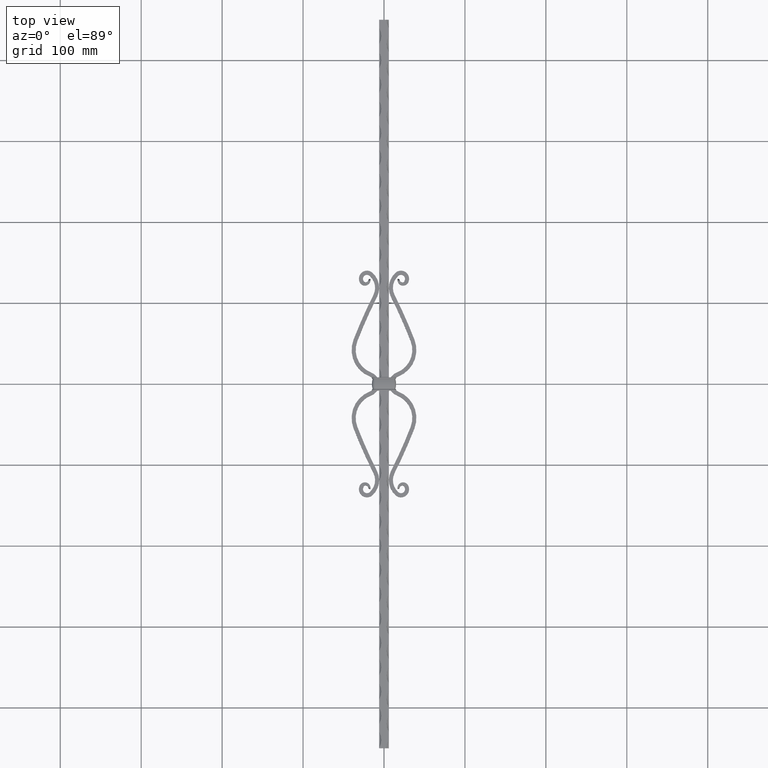
[diagram: clean part render]
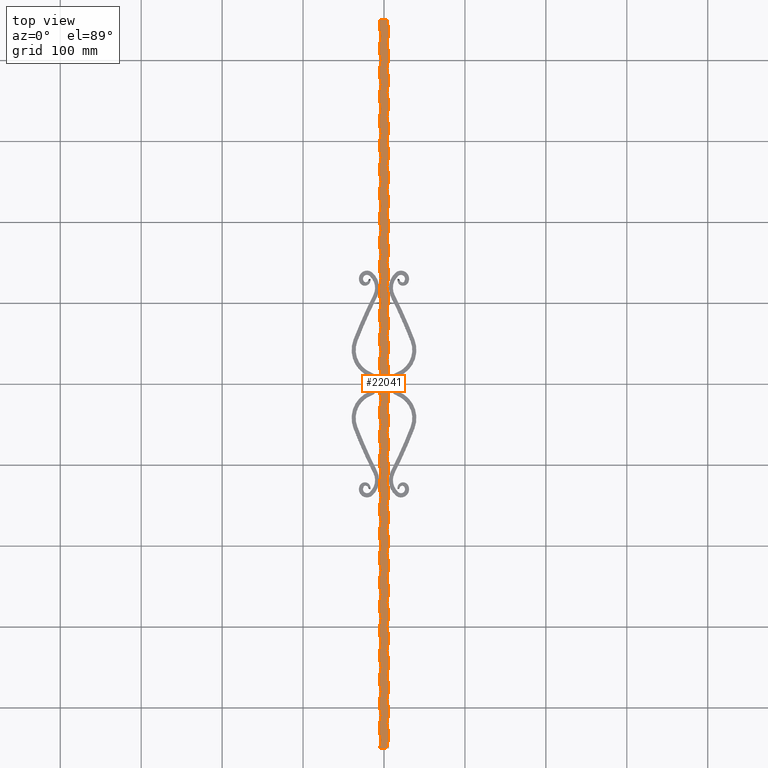
[diagram: same view with one face highlighted and labeled with its STEP entity id]
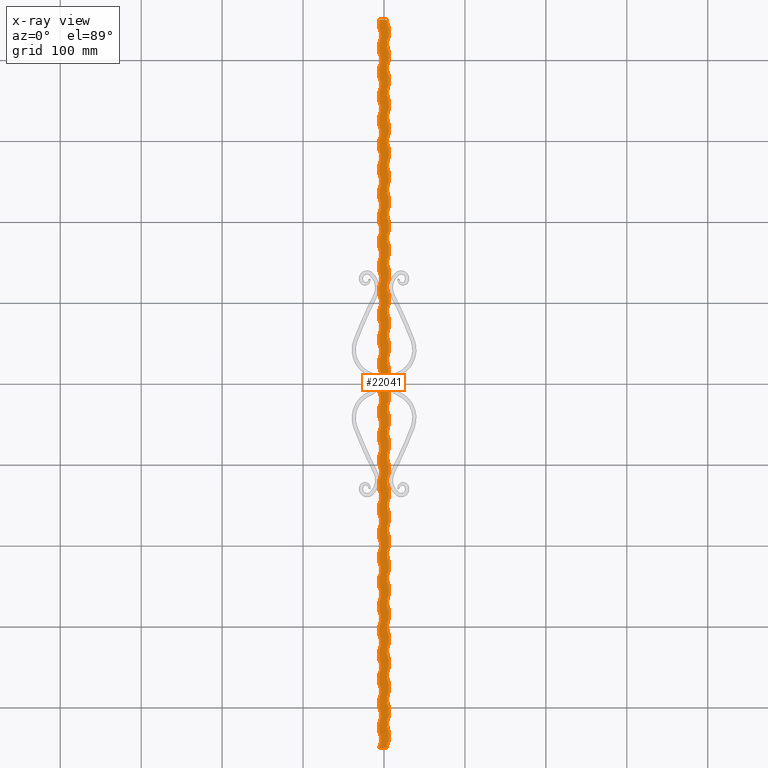
[diagram: x-ray of the same camera — body ghosted, the highlighted face saturated]
A machine part, top view. The second image highlights one B-rep face of the part: STEP entity #22041.
The next image is the same camera in x-ray: the body ghosted, the highlighted face saturated — about 0% of this face is hidden behind the body in this view.
In plain terms, the highlighted planar face has unit normal (0, 0, -1).
Its self-contained STEP definition (entity closure, byte-faithful):
#17 = DIRECTION ( 'NONE',  ( -0.000000000000000000, -0.000000000000000000, 1.000000000000000000 ) ) ;
#44 = DIRECTION ( 'NONE',  ( -0.000000000000000000, -1.000000000000000000, -0.000000000000000000 ) ) ;
#70 = CARTESIAN_POINT ( 'NONE',  ( 6.000000000000000000, -10.00000000000000888, 5.999999999999999112 ) ) ;
#94 = CIRCLE ( 'NONE', #9478, 21.25000000000002487 ) ;
#106 = DIRECTION ( 'NONE',  ( -0.000000000000000000, -0.000000000000000000, 1.000000000000000000 ) ) ;
#114 = LINE ( 'NONE', #17225, #2529 ) ;
#118 = LINE ( 'NONE', #1131, #20793 ) ;
#127 = VERTEX_POINT ( 'NONE', #9337 ) ;
#140 = CIRCLE ( 'NONE', #18462, 21.25000000000002487 ) ;
#198 = VECTOR ( 'NONE', #14918, 1000.000000000000000 ) ;
#204 = CARTESIAN_POINT ( 'NONE',  ( -6.000000000000000000, -279.9999999999999432, 5.999999999999999112 ) ) ;
#218 = VERTEX_POINT ( 'NONE', #204 ) ;
#235 = EDGE_CURVE ( 'NONE', #2579, #1004, #18643, .T. ) ;
#245 = EDGE_CURVE ( 'NONE', #11837, #17904, #680, .T. ) ;
#249 = DIRECTION ( 'NONE',  ( 0.000000000000000000, 0.000000000000000000, -1.000000000000000000 ) ) ;
#256 = AXIS2_PLACEMENT_3D ( 'NONE', #9982, #18737, #17128 ) ;
#260 = CARTESIAN_POINT ( 'NONE',  ( 24.75000000000002132, 29.99999999999997158, 5.999999999999999112 ) ) ;
#278 = VERTEX_POINT ( 'NONE', #21378 ) ;
#313 = CARTESIAN_POINT ( 'NONE',  ( -6.000000000000000000, 350.0000000000000000, 5.999999999999999112 ) ) ;
#322 = ORIENTED_EDGE ( 'NONE', *, *, #19440, .F. ) ;
#327 = DIRECTION ( 'NONE',  ( -0.000000000000000000, -1.000000000000000000, -0.000000000000000000 ) ) ;
#358 = DIRECTION ( 'NONE',  ( -1.000000000000000000, 0.000000000000000000, 0.000000000000000000 ) ) ;
#367 = AXIS2_PLACEMENT_3D ( 'NONE', #10235, #19201, #11987 ) ;
#416 = CIRCLE ( 'NONE', #2939, 21.25000000000002487 ) ;
#443 = VECTOR ( 'NONE', #17637, 1000.000000000000000 ) ;
#547 = LINE ( 'NONE', #20705, #11736 ) ;
#574 = AXIS2_PLACEMENT_3D ( 'NONE', #4536, #21733, #1071 ) ;
#586 = EDGE_CURVE ( 'NONE', #18711, #16238, #5260, .T. ) ;
#609 = EDGE_CURVE ( 'NONE', #20994, #12991, #22138, .T. ) ;
#639 = FACE_OUTER_BOUND ( 'NONE', #20996, .T. ) ;
#660 = EDGE_CURVE ( 'NONE', #13846, #18539, #20795, .T. ) ;
#680 = CIRCLE ( 'NONE', #4143, 21.25000000000002487 ) ;
#728 = CARTESIAN_POINT ( 'NONE',  ( 24.75000000000002132, 270.0000000000000000, 5.999999999999999112 ) ) ;
#736 = CIRCLE ( 'NONE', #20136, 21.25000000000002487 ) ;
#749 = CARTESIAN_POINT ( 'NONE',  ( -6.000000000000000000, 450.0000000000000000, 5.999999999999999112 ) ) ;
#760 = ORIENTED_EDGE ( 'NONE', *, *, #10919, .F. ) ;
#817 = CARTESIAN_POINT ( 'NONE',  ( -6.000000000000000000, 450.0000000000000000, 5.999999999999999112 ) ) ;
#820 = CARTESIAN_POINT ( 'NONE',  ( -5.999999999999998224, -90.00000000000002842, 5.999999999999999112 ) ) ;
#847 = VERTEX_POINT ( 'NONE', #1008 ) ;
#853 = DIRECTION ( 'NONE',  ( -1.000000000000000000, 0.000000000000000000, 0.000000000000000000 ) ) ;
#855 = CARTESIAN_POINT ( 'NONE',  ( -5.999999999999998224, -330.0000000000000000, 5.999999999999999112 ) ) ;
#866 = CIRCLE ( 'NONE', #1322, 21.25000000000002487 ) ;
#892 = VERTEX_POINT ( 'NONE', #18650 ) ;
#926 = CIRCLE ( 'NONE', #13983, 21.25000000000002487 ) ;
#948 = ORIENTED_EDGE ( 'NONE', *, *, #15532, .F. ) ;
#954 = AXIS2_PLACEMENT_3D ( 'NONE', #16414, #16191, #9567 ) ;
#1004 = VERTEX_POINT ( 'NONE', #10426 ) ;
#1008 = CARTESIAN_POINT ( 'NONE',  ( 6.000000000000000000, -279.9999999999999432, 5.999999999999999112 ) ) ;
#1071 = DIRECTION ( 'NONE',  ( -1.000000000000000000, 0.000000000000000000, 0.000000000000000000 ) ) ;
#1072 = VECTOR ( 'NONE', #10394, 1000.000000000000000 ) ;
#1086 = CARTESIAN_POINT ( 'NONE',  ( 6.000000000000000000, 339.9999999999999432, 5.999999999999999112 ) ) ;
#1112 = CARTESIAN_POINT ( 'NONE',  ( -5.999999999999998224, -29.99999999999997158, 5.999999999999999112 ) ) ;
#1115 = EDGE_CURVE ( 'NONE', #19668, #1796, #19767, .T. ) ;
#1128 = VERTEX_POINT ( 'NONE', #2482 ) ;
#1131 = CARTESIAN_POINT ( 'NONE',  ( 6.000000000000000000, 450.0000000000000000, 5.999999999999999112 ) ) ;
#1138 = VECTOR ( 'NONE', #7427, 1000.000000000000000 ) ;
#1165 = ORIENTED_EDGE ( 'NONE', *, *, #10193, .F. ) ;
#1173 = CARTESIAN_POINT ( 'NONE',  ( -5.999999999999998224, -1.734723475976807094E-15, 5.999999999999999112 ) ) ;
#1241 = VERTEX_POINT ( 'NONE', #18242 ) ;
#1296 = VECTOR ( 'NONE', #19937, 1000.000000000000000 ) ;
#1304 = ORIENTED_EDGE ( 'NONE', *, *, #18014, .T. ) ;
#1307 = CARTESIAN_POINT ( 'NONE',  ( -6.000000000000000000, 140.0000000000000000, 5.999999999999999112 ) ) ;
#1322 = AXIS2_PLACEMENT_3D ( 'NONE', #17123, #9893, #8442 ) ;
#1365 = ORIENTED_EDGE ( 'NONE', *, *, #12570, .T. ) ;
#1381 = ORIENTED_EDGE ( 'NONE', *, *, #18734, .F. ) ;
#1439 = LINE ( 'NONE', #5464, #6038 ) ;
#1440 = ORIENTED_EDGE ( 'NONE', *, *, #16955, .T. ) ;
#1514 = DIRECTION ( 'NONE',  ( -0.000000000000000000, -1.000000000000000000, -0.000000000000000000 ) ) ;
#1555 = CARTESIAN_POINT ( 'NONE',  ( -5.999999999999998224, 270.0000000000000000, 5.999999999999999112 ) ) ;
#1572 = DIRECTION ( 'NONE',  ( -1.000000000000000000, 0.000000000000000000, 0.000000000000000000 ) ) ;
#1594 = CARTESIAN_POINT ( 'NONE',  ( -5.999999999999998224, 300.0000000000000000, 5.999999999999999112 ) ) ;
#1597 = EDGE_CURVE ( 'NONE', #8873, #8090, #10242, .T. ) ;
#1645 = CARTESIAN_POINT ( 'NONE',  ( 6.000000000000000000, -310.0000000000000000, 5.999999999999999112 ) ) ;
#1650 = VECTOR ( 'NONE', #20461, 1000.000000000000000 ) ;
#1666 = EDGE_CURVE ( 'NONE', #8873, #3470, #21914, .T. ) ;
#1684 = CARTESIAN_POINT ( 'NONE',  ( 6.000000000000000000, -410.0000000000000000, 5.999999999999999112 ) ) ;
#1715 = DIRECTION ( 'NONE',  ( -0.000000000000000000, -0.000000000000000000, 1.000000000000000000 ) ) ;
#1731 = CARTESIAN_POINT ( 'NONE',  ( -5.999999999999998224, -300.0000000000000000, 5.999999999999999112 ) ) ;
#1734 = ORIENTED_EDGE ( 'NONE', *, *, #19594, .T. ) ;
#1763 = DIRECTION ( 'NONE',  ( -1.000000000000000000, 0.000000000000000000, 0.000000000000000000 ) ) ;
#1781 = ORIENTED_EDGE ( 'NONE', *, *, #13902, .T. ) ;
#1796 = VERTEX_POINT ( 'NONE', #18052 ) ;
#1840 = DIRECTION ( 'NONE',  ( 0.000000000000000000, 0.000000000000000000, -1.000000000000000000 ) ) ;
#1863 = EDGE_CURVE ( 'NONE', #21041, #12360, #3906, .T. ) ;
#1877 = VERTEX_POINT ( 'NONE', #16374 ) ;
#1901 = EDGE_CURVE ( 'NONE', #218, #16464, #21624, .T. ) ;
#1928 = CARTESIAN_POINT ( 'NONE',  ( -24.75000000000002132, -259.9999999999999432, 5.999999999999999112 ) ) ;
#1944 = VERTEX_POINT ( 'NONE', #6471 ) ;
#1969 = CARTESIAN_POINT ( 'NONE',  ( -5.999999999999998224, 210.0000000000000000, 5.999999999999999112 ) ) ;
#1993 = DIRECTION ( 'NONE',  ( -1.000000000000000000, 0.000000000000000000, 0.000000000000000000 ) ) ;
#1995 = DIRECTION ( 'NONE',  ( -0.000000000000000000, -1.000000000000000000, -0.000000000000000000 ) ) ;
#2045 = CARTESIAN_POINT ( 'NONE',  ( 6.000000000000000000, 450.0000000000000000, 5.999999999999999112 ) ) ;
#2060 = VERTEX_POINT ( 'NONE', #17315 ) ;
#2066 = DIRECTION ( 'NONE',  ( -0.000000000000000000, -0.000000000000000000, 1.000000000000000000 ) ) ;
#2080 = ORIENTED_EDGE ( 'NONE', *, *, #15600, .T. ) ;
#2129 = EDGE_CURVE ( 'NONE', #10327, #7529, #20563, .T. ) ;
#2171 = CARTESIAN_POINT ( 'NONE',  ( 6.000000000000000000, -350.0000000000000568, 5.999999999999999112 ) ) ;
#2230 = VERTEX_POINT ( 'NONE', #15875 ) ;
#2235 = ORIENTED_EDGE ( 'NONE', *, *, #13326, .F. ) ;
#2255 = DIRECTION ( 'NONE',  ( -1.000000000000000000, 0.000000000000000000, 0.000000000000000000 ) ) ;
#2312 = EDGE_CURVE ( 'NONE', #12613, #21057, #4762, .T. ) ;
#2318 = VECTOR ( 'NONE', #4012, 1000.000000000000000 ) ;
#2375 = VECTOR ( 'NONE', #327, 1000.000000000000000 ) ;
#2394 = CARTESIAN_POINT ( 'NONE',  ( -6.000000000000000000, 290.0000000000000568, 5.999999999999999112 ) ) ;
#2399 = CARTESIAN_POINT ( 'NONE',  ( 6.000000000000000000, -19.99999999999996092, 5.999999999999999112 ) ) ;
#2456 = CARTESIAN_POINT ( 'NONE',  ( -6.000000000000000000, -39.99999999999997868, 5.999999999999999112 ) ) ;
#2482 = CARTESIAN_POINT ( 'NONE',  ( -6.000000000000000000, 230.0000000000000000, 5.999999999999999112 ) ) ;
#2504 = EDGE_CURVE ( 'NONE', #4307, #20528, #14019, .T. ) ;
#2510 = ORIENTED_EDGE ( 'NONE', *, *, #586, .F. ) ;
#2529 = VECTOR ( 'NONE', #8557, 1000.000000000000000 ) ;
#2531 = EDGE_CURVE ( 'NONE', #5405, #7018, #4735, .T. ) ;
#2543 = DIRECTION ( 'NONE',  ( -1.000000000000000000, 0.000000000000000000, 0.000000000000000000 ) ) ;
#2579 = VERTEX_POINT ( 'NONE', #13181 ) ;
#2619 = LINE ( 'NONE', #6362, #198 ) ;
#2631 = CARTESIAN_POINT ( 'NONE',  ( 6.000000000000000000, -290.0000000000000000, 5.999999999999999112 ) ) ;
#2639 = LINE ( 'NONE', #3663, #2375 ) ;
#2650 = VERTEX_POINT ( 'NONE', #1086 ) ;
#2666 = EDGE_CURVE ( 'NONE', #19785, #16663, #926, .T. ) ;
#2699 = CIRCLE ( 'NONE', #11235, 21.25000000000002487 ) ;
#2720 = CARTESIAN_POINT ( 'NONE',  ( 24.75000000000002132, 60.00000000000000000, 5.999999999999999112 ) ) ;
#2729 = CARTESIAN_POINT ( 'NONE',  ( -6.000000000000000000, 450.0000000000000000, 5.999999999999999112 ) ) ;
#2748 = CARTESIAN_POINT ( 'NONE',  ( -24.75000000000002132, 430.0000000000000000, 5.999999999999999112 ) ) ;
#2758 = CARTESIAN_POINT ( 'NONE',  ( -6.000000000000000000, -450.0000000000000000, 5.999999999999999112 ) ) ;
#2835 = EDGE_CURVE ( 'NONE', #9685, #13024, #8838, .T. ) ;
#2847 = DIRECTION ( 'NONE',  ( -0.000000000000000000, -1.000000000000000000, -0.000000000000000000 ) ) ;
#2851 = CIRCLE ( 'NONE', #954, 21.25000000000002487 ) ;
#2861 = VERTEX_POINT ( 'NONE', #10594 ) ;
#2866 = ORIENTED_EDGE ( 'NONE', *, *, #2504, .F. ) ;
#2869 = ORIENTED_EDGE ( 'NONE', *, *, #13814, .F. ) ;
#2872 = CARTESIAN_POINT ( 'NONE',  ( -5.999999999999998224, -120.0000000000000568, 5.999999999999999112 ) ) ;
#2903 = DIRECTION ( 'NONE',  ( 0.000000000000000000, 0.000000000000000000, -1.000000000000000000 ) ) ;
#2908 = CARTESIAN_POINT ( 'NONE',  ( 24.75000000000002132, 149.9999999999999716, 5.999999999999999112 ) ) ;
#2909 = ORIENTED_EDGE ( 'NONE', *, *, #16362, .F. ) ;
#2939 = AXIS2_PLACEMENT_3D ( 'NONE', #7517, #12557, #2255 ) ;
#2962 = AXIS2_PLACEMENT_3D ( 'NONE', #13718, #13510, #13588 ) ;
#3001 = DIRECTION ( 'NONE',  ( -1.000000000000000000, 0.000000000000000000, 0.000000000000000000 ) ) ;
#3036 = VECTOR ( 'NONE', #12703, 1000.000000000000000 ) ;
#3043 = CIRCLE ( 'NONE', #7780, 21.25000000000002487 ) ;
#3085 = EDGE_CURVE ( 'NONE', #14300, #14457, #118, .T. ) ;
#3099 = AXIS2_PLACEMENT_3D ( 'NONE', #3256, #12018, #17331 ) ;
#3143 = ORIENTED_EDGE ( 'NONE', *, *, #11529, .T. ) ;
#3163 = CARTESIAN_POINT ( 'NONE',  ( 6.000000000000000000, -370.0000000000000568, 5.999999999999999112 ) ) ;
#3168 = DIRECTION ( 'NONE',  ( 0.000000000000000000, 0.000000000000000000, -1.000000000000000000 ) ) ;
#3181 = CARTESIAN_POINT ( 'NONE',  ( 6.000000000000000000, 100.0000000000000284, 5.999999999999999112 ) ) ;
#3195 = EDGE_CURVE ( 'NONE', #3284, #14752, #17791, .T. ) ;
#3226 = CARTESIAN_POINT ( 'NONE',  ( 24.75000000000002132, 120.0000000000000000, 5.999999999999999112 ) ) ;
#3256 = CARTESIAN_POINT ( 'NONE',  ( 24.75000000000002132, -120.0000000000000568, 5.999999999999999112 ) ) ;
#3274 = VERTEX_POINT ( 'NONE', #7343 ) ;
#3284 = VERTEX_POINT ( 'NONE', #2171 ) ;
#3302 = CARTESIAN_POINT ( 'NONE',  ( 6.000000000000000000, 350.0000000000000000, 5.999999999999999112 ) ) ;
#3343 = CARTESIAN_POINT ( 'NONE',  ( 24.75000000000002132, 329.9999999999999432, 5.999999999999999112 ) ) ;
#3394 = VERTEX_POINT ( 'NONE', #21930 ) ;
#3415 = DIRECTION ( 'NONE',  ( -1.000000000000000000, 0.000000000000000000, 0.000000000000000000 ) ) ;
#3455 = VECTOR ( 'NONE', #17973, 1000.000000000000000 ) ;
#3466 = VERTEX_POINT ( 'NONE', #16936 ) ;
#3470 = VERTEX_POINT ( 'NONE', #18830 ) ;
#3497 = CARTESIAN_POINT ( 'NONE',  ( 6.000000000000000000, 250.0000000000000000, 5.999999999999999112 ) ) ;
#3498 = DIRECTION ( 'NONE',  ( -1.000000000000000000, 0.000000000000000000, 0.000000000000000000 ) ) ;
#3577 = VERTEX_POINT ( 'NONE', #8638 ) ;
#3585 = LINE ( 'NONE', #16142, #19367 ) ;
#3608 = VECTOR ( 'NONE', #19256, 1000.000000000000000 ) ;
#3611 = VERTEX_POINT ( 'NONE', #17229 ) ;
#3635 = VERTEX_POINT ( 'NONE', #22485 ) ;
#3637 = CIRCLE ( 'NONE', #256, 21.25000000000002487 ) ;
#3663 = CARTESIAN_POINT ( 'NONE',  ( -6.000000000000000000, 450.0000000000000000, 5.999999999999999112 ) ) ;
#3679 = CARTESIAN_POINT ( 'NONE',  ( 6.000000000000000000, 450.0000000000000000, 5.999999999999999112 ) ) ;
#3705 = CARTESIAN_POINT ( 'NONE',  ( 6.000000000000000000, -139.9999999999999716, 5.999999999999999112 ) ) ;
#3706 = ORIENTED_EDGE ( 'NONE', *, *, #20694, .T. ) ;
#3795 = VERTEX_POINT ( 'NONE', #17617 ) ;
#3800 = CARTESIAN_POINT ( 'NONE',  ( 24.75000000000002132, -450.0000000000000000, 5.999999999999999112 ) ) ;
#3817 = ORIENTED_EDGE ( 'NONE', *, *, #4816, .T. ) ;
#3851 = CARTESIAN_POINT ( 'NONE',  ( 6.000000000000000000, 130.0000000000000000, 5.999999999999999112 ) ) ;
#3852 = ORIENTED_EDGE ( 'NONE', *, *, #15389, .F. ) ;
#3859 = CARTESIAN_POINT ( 'NONE',  ( 6.000000000000000000, -39.99999999999997868, 5.999999999999999112 ) ) ;
#3898 = LINE ( 'NONE', #19513, #22436 ) ;
#3906 = CIRCLE ( 'NONE', #8278, 21.25000000000002487 ) ;
#3939 = VECTOR ( 'NONE', #17426, 1000.000000000000000 ) ;
#3951 = DIRECTION ( 'NONE',  ( 0.000000000000000000, 0.000000000000000000, -1.000000000000000000 ) ) ;
#3977 = CARTESIAN_POINT ( 'NONE',  ( 3.499999999999997780, -450.0000000000000000, 5.999999999999999112 ) ) ;
#3995 = VECTOR ( 'NONE', #18453, 1000.000000000000000 ) ;
#4012 = DIRECTION ( 'NONE',  ( -0.000000000000000000, -1.000000000000000000, -0.000000000000000000 ) ) ;
#4018 = VERTEX_POINT ( 'NONE', #5341 ) ;
#4046 = CIRCLE ( 'NONE', #10070, 21.25000000000002487 ) ;
#4056 = AXIS2_PLACEMENT_3D ( 'NONE', #7649, #16258, #14652 ) ;
#4066 = CARTESIAN_POINT ( 'NONE',  ( -5.999999999999998224, 149.9999999999999716, 5.999999999999999112 ) ) ;
#4097 = CARTESIAN_POINT ( 'NONE',  ( -6.000000000000000000, 450.0000000000000000, 5.999999999999999112 ) ) ;
#4104 = EDGE_CURVE ( 'NONE', #7018, #13511, #94, .T. ) ;
#4108 = VERTEX_POINT ( 'NONE', #8851 ) ;
#4128 = ORIENTED_EDGE ( 'NONE', *, *, #16119, .F. ) ;
#4130 = EDGE_CURVE ( 'NONE', #11296, #17737, #1439, .T. ) ;
#4143 = AXIS2_PLACEMENT_3D ( 'NONE', #12146, #1715, #5192 ) ;
#4171 = CARTESIAN_POINT ( 'NONE',  ( 6.000000000000000000, 450.0000000000000000, 5.999999999999999112 ) ) ;
#4183 = DIRECTION ( 'NONE',  ( -1.000000000000000000, 0.000000000000000000, 0.000000000000000000 ) ) ;
#4236 = DIRECTION ( 'NONE',  ( -1.000000000000000000, 0.000000000000000000, 0.000000000000000000 ) ) ;
#4242 = CARTESIAN_POINT ( 'NONE',  ( -6.000000000000000000, 450.0000000000000000, 5.999999999999999112 ) ) ;
#4252 = AXIS2_PLACEMENT_3D ( 'NONE', #17605, #3951, #5698 ) ;
#4307 = VERTEX_POINT ( 'NONE', #16218 ) ;
#4348 = VERTEX_POINT ( 'NONE', #6280 ) ;
#4361 = CIRCLE ( 'NONE', #4252, 21.25000000000002487 ) ;
#4389 = CARTESIAN_POINT ( 'NONE',  ( -24.75000000000002132, -320.0000000000000000, 5.999999999999999112 ) ) ;
#4397 = DIRECTION ( 'NONE',  ( -0.000000000000000000, -1.000000000000000000, -0.000000000000000000 ) ) ;
#4398 = DIRECTION ( 'NONE',  ( 0.000000000000000000, 0.000000000000000000, -1.000000000000000000 ) ) ;
#4478 = DIRECTION ( 'NONE',  ( -0.000000000000000000, -1.000000000000000000, -0.000000000000000000 ) ) ;
#4506 = CARTESIAN_POINT ( 'NONE',  ( 6.000000000000000000, 450.0000000000000000, 5.999999999999999112 ) ) ;
#4536 = CARTESIAN_POINT ( 'NONE',  ( 24.75000000000002132, -300.0000000000000000, 5.999999999999999112 ) ) ;
#4537 = ORIENTED_EDGE ( 'NONE', *, *, #5878, .F. ) ;
#4602 = CIRCLE ( 'NONE', #574, 21.25000000000002487 ) ;
#4625 = CARTESIAN_POINT ( 'NONE',  ( -6.000000000000000000, 380.0000000000000000, 5.999999999999999112 ) ) ;
#4650 = CARTESIAN_POINT ( 'NONE',  ( -24.75000000000002132, 159.9999999999999716, 5.999999999999999112 ) ) ;
#4656 = DIRECTION ( 'NONE',  ( 1.000000000000000000, 0.000000000000000000, 0.000000000000000000 ) ) ;
#4657 = CARTESIAN_POINT ( 'NONE',  ( -24.75000000000002132, 370.0000000000000000, 5.999999999999999112 ) ) ;
#4667 = CARTESIAN_POINT ( 'NONE',  ( 6.000000000000000000, 10.00000000000001066, 5.999999999999999112 ) ) ;
#4685 = EDGE_CURVE ( 'NONE', #15342, #10946, #19360, .T. ) ;
#4711 = EDGE_CURVE ( 'NONE', #1796, #3284, #21534, .T. ) ;
#4731 = ORIENTED_EDGE ( 'NONE', *, *, #11008, .F. ) ;
#4735 = LINE ( 'NONE', #19231, #12128 ) ;
#4737 = DIRECTION ( 'NONE',  ( 0.000000000000000000, 0.000000000000000000, -1.000000000000000000 ) ) ;
#4754 = VECTOR ( 'NONE', #21652, 1000.000000000000000 ) ;
#4760 = VERTEX_POINT ( 'NONE', #12624 ) ;
#4762 = CIRCLE ( 'NONE', #18940, 21.25000000000002487 ) ;
#4765 = ORIENTED_EDGE ( 'NONE', *, *, #6812, .T. ) ;
#4775 = VECTOR ( 'NONE', #7739, 1000.000000000000000 ) ;
#4809 = ORIENTED_EDGE ( 'NONE', *, *, #14926, .F. ) ;
#4816 = EDGE_CURVE ( 'NONE', #19437, #22503, #9572, .T. ) ;
#4820 = ORIENTED_EDGE ( 'NONE', *, *, #2129, .F. ) ;
#4841 = VECTOR ( 'NONE', #15892, 1000.000000000000000 ) ;
#4855 = CARTESIAN_POINT ( 'NONE',  ( -5.999999999999998224, 60.00000000000000000, 5.999999999999999112 ) ) ;
#4865 = EDGE_CURVE ( 'NONE', #13024, #2230, #12035, .T. ) ;
#4870 = PLANE ( 'NONE',  #16411 ) ;
#4876 = EDGE_CURVE ( 'NONE', #19043, #11296, #5203, .T. ) ;
#4881 = CARTESIAN_POINT ( 'NONE',  ( -6.000000000000000000, 450.0000000000000000, 5.999999999999999112 ) ) ;
#4882 = DIRECTION ( 'NONE',  ( -0.000000000000000000, -0.000000000000000000, 1.000000000000000000 ) ) ;
#4997 = EDGE_CURVE ( 'NONE', #17904, #11585, #6264, .T. ) ;
#5038 = EDGE_CURVE ( 'NONE', #7401, #12987, #17991, .T. ) ;
#5040 = ORIENTED_EDGE ( 'NONE', *, *, #3085, .F. ) ;
#5072 = EDGE_CURVE ( 'NONE', #1004, #8283, #4361, .T. ) ;
#5080 = LINE ( 'NONE', #11166, #20066 ) ;
#5096 = CARTESIAN_POINT ( 'NONE',  ( 24.75000000000002132, 0.000000000000000000, 5.999999999999999112 ) ) ;
#5166 = EDGE_CURVE ( 'NONE', #21731, #2650, #14453, .T. ) ;
#5177 = CARTESIAN_POINT ( 'NONE',  ( 24.75000000000002132, -90.00000000000002842, 5.999999999999999112 ) ) ;
#5192 = DIRECTION ( 'NONE',  ( -1.000000000000000000, 0.000000000000000000, 0.000000000000000000 ) ) ;
#5203 = CIRCLE ( 'NONE', #12474, 21.25000000000002487 ) ;
#5234 = CIRCLE ( 'NONE', #19656, 21.25000000000002487 ) ;
#5243 = VERTEX_POINT ( 'NONE', #4625 ) ;
#5260 = LINE ( 'NONE', #4171, #14003 ) ;
#5330 = CARTESIAN_POINT ( 'NONE',  ( -6.000000000000000000, 450.0000000000000000, 5.999999999999999112 ) ) ;
#5337 = AXIS2_PLACEMENT_3D ( 'NONE', #18600, #22011, #18285 ) ;
#5341 = CARTESIAN_POINT ( 'NONE',  ( -5.999999999999998224, -389.9999999999999432, 5.999999999999999112 ) ) ;
#5365 = LINE ( 'NONE', #14891, #3995 ) ;
#5381 = VECTOR ( 'NONE', #22065, 1000.000000000000000 ) ;
#5388 = AXIS2_PLACEMENT_3D ( 'NONE', #21326, #7729, #14718 ) ;
#5398 = LINE ( 'NONE', #22090, #7290 ) ;
#5405 = VERTEX_POINT ( 'NONE', #8675 ) ;
#5414 = DIRECTION ( 'NONE',  ( 0.000000000000000000, 0.000000000000000000, -1.000000000000000000 ) ) ;
#5457 = ORIENTED_EDGE ( 'NONE', *, *, #4865, .T. ) ;
#5464 = CARTESIAN_POINT ( 'NONE',  ( 6.000000000000000000, 450.0000000000000000, 5.999999999999999112 ) ) ;
#5525 = ORIENTED_EDGE ( 'NONE', *, *, #16280, .F. ) ;
#5566 = EDGE_CURVE ( 'NONE', #6017, #12713, #16941, .T. ) ;
#5571 = DIRECTION ( 'NONE',  ( -1.000000000000000000, 0.000000000000000000, 0.000000000000000000 ) ) ;
#5625 = DIRECTION ( 'NONE',  ( -0.000000000000000000, -0.000000000000000000, 1.000000000000000000 ) ) ;
#5630 = VERTEX_POINT ( 'NONE', #12905 ) ;
#5681 = EDGE_CURVE ( 'NONE', #1944, #19540, #3043, .T. ) ;
#5698 = DIRECTION ( 'NONE',  ( -1.000000000000000000, 0.000000000000000000, 0.000000000000000000 ) ) ;
#5709 = DIRECTION ( 'NONE',  ( -1.000000000000000000, 0.000000000000000000, 0.000000000000000000 ) ) ;
#5745 = DIRECTION ( 'NONE',  ( -1.000000000000000000, 0.000000000000000000, 0.000000000000000000 ) ) ;
#5749 = EDGE_CURVE ( 'NONE', #8090, #2579, #21318, .T. ) ;
#5767 = CARTESIAN_POINT ( 'NONE',  ( -6.000000000000000000, 450.0000000000000000, 5.999999999999999112 ) ) ;
#5797 = CARTESIAN_POINT ( 'NONE',  ( -24.75000000000002132, 70.00000000000000000, 5.999999999999999112 ) ) ;
#5878 = EDGE_CURVE ( 'NONE', #9407, #4760, #21363, .T. ) ;
#5884 = LINE ( 'NONE', #21824, #1296 ) ;
#5899 = EDGE_CURVE ( 'NONE', #12360, #17024, #10674, .T. ) ;
#5925 = CIRCLE ( 'NONE', #15909, 21.25000000000002487 ) ;
#5928 = VERTEX_POINT ( 'NONE', #21165 ) ;
#5935 = DIRECTION ( 'NONE',  ( -0.000000000000000000, -1.000000000000000000, -0.000000000000000000 ) ) ;
#5945 = CARTESIAN_POINT ( 'NONE',  ( -24.75000000000002132, 190.0000000000000000, 5.999999999999999112 ) ) ;
#5959 = DIRECTION ( 'NONE',  ( 0.000000000000000000, 0.000000000000000000, -1.000000000000000000 ) ) ;
#6015 = DIRECTION ( 'NONE',  ( -1.000000000000000000, 0.000000000000000000, 0.000000000000000000 ) ) ;
#6017 = VERTEX_POINT ( 'NONE', #7690 ) ;
#6038 = VECTOR ( 'NONE', #1995, 1000.000000000000000 ) ;
#6046 = CIRCLE ( 'NONE', #18302, 21.25000000000002487 ) ;
#6055 = CARTESIAN_POINT ( 'NONE',  ( -24.75000000000002132, 310.0000000000000000, 5.999999999999999112 ) ) ;
#6092 = CARTESIAN_POINT ( 'NONE',  ( -24.75000000000002132, -80.00000000000001421, 5.999999999999999112 ) ) ;
#6167 = EDGE_CURVE ( 'NONE', #3466, #19043, #3585, .T. ) ;
#6186 = ORIENTED_EDGE ( 'NONE', *, *, #18175, .T. ) ;
#6196 = CARTESIAN_POINT ( 'NONE',  ( -6.000000000000000000, -219.9999999999999147, 5.999999999999999112 ) ) ;
#6198 = VECTOR ( 'NONE', #18813, 1000.000000000000000 ) ;
#6214 = VECTOR ( 'NONE', #4397, 1000.000000000000000 ) ;
#6254 = VERTEX_POINT ( 'NONE', #11811 ) ;
#6264 = LINE ( 'NONE', #17381, #8195 ) ;
#6280 = CARTESIAN_POINT ( 'NONE',  ( -5.999999999999998224, -420.0000000000000000, 5.999999999999999112 ) ) ;
#6285 = EDGE_CURVE ( 'NONE', #20549, #8257, #866, .T. ) ;
#6293 = DIRECTION ( 'NONE',  ( -1.000000000000000000, 0.000000000000000000, 0.000000000000000000 ) ) ;
#6304 = DIRECTION ( 'NONE',  ( -1.000000000000000000, 0.000000000000000000, 0.000000000000000000 ) ) ;
#6325 = ORIENTED_EDGE ( 'NONE', *, *, #19258, .T. ) ;
#6358 = CARTESIAN_POINT ( 'NONE',  ( 6.000000000000000000, 410.0000000000000000, 5.999999999999999112 ) ) ;
#6362 = CARTESIAN_POINT ( 'NONE',  ( -6.000000000000000000, 450.0000000000000000, 5.999999999999999112 ) ) ;
#6431 = DIRECTION ( 'NONE',  ( -1.000000000000000000, 0.000000000000000000, 0.000000000000000000 ) ) ;
#6439 = EDGE_CURVE ( 'NONE', #14752, #19678, #7110, .T. ) ;
#6468 = LINE ( 'NONE', #18437, #5381 ) ;
#6471 = CARTESIAN_POINT ( 'NONE',  ( -6.000000000000000000, -70.00000000000000000, 5.999999999999999112 ) ) ;
#6487 = AXIS2_PLACEMENT_3D ( 'NONE', #21044, #17105, #8963 ) ;
#6493 = DIRECTION ( 'NONE',  ( -0.000000000000000000, -0.000000000000000000, 1.000000000000000000 ) ) ;
#6505 = CARTESIAN_POINT ( 'NONE',  ( 6.000000000000000000, 450.0000000000000000, 5.999999999999999112 ) ) ;
#6509 = ORIENTED_EDGE ( 'NONE', *, *, #5038, .F. ) ;
#6548 = AXIS2_PLACEMENT_3D ( 'NONE', #20249, #15243, #18660 ) ;
#6613 = VECTOR ( 'NONE', #20199, 1000.000000000000000 ) ;
#6640 = CIRCLE ( 'NONE', #6487, 21.25000000000002487 ) ;
#6670 = CARTESIAN_POINT ( 'NONE',  ( -5.999999999999998224, 240.0000000000000000, 5.999999999999999112 ) ) ;
#6675 = ORIENTED_EDGE ( 'NONE', *, *, #5899, .T. ) ;
#6676 = ORIENTED_EDGE ( 'NONE', *, *, #10750, .F. ) ;
#6714 = CARTESIAN_POINT ( 'NONE',  ( 6.000000000000000000, 70.00000000000000000, 5.999999999999999112 ) ) ;
#6756 = CARTESIAN_POINT ( 'NONE',  ( -24.75000000000002132, -169.9999999999999716, 5.999999999999999112 ) ) ;
#6761 = CARTESIAN_POINT ( 'NONE',  ( -6.000000000000000000, -450.0000000000000000, 5.999999999999999112 ) ) ;
#6812 = EDGE_CURVE ( 'NONE', #5243, #15342, #10655, .T. ) ;
#6826 = AXIS2_PLACEMENT_3D ( 'NONE', #4657, #11468, #18370 ) ;
#6877 = ORIENTED_EDGE ( 'NONE', *, *, #6439, .F. ) ;
#6893 = CARTESIAN_POINT ( 'NONE',  ( 6.000000000000000000, 260.0000000000000000, 5.999999999999999112 ) ) ;
#6896 = ORIENTED_EDGE ( 'NONE', *, *, #6285, .F. ) ;
#6903 = AXIS2_PLACEMENT_3D ( 'NONE', #5177, #106, #12284 ) ;
#6945 = CIRCLE ( 'NONE', #8502, 21.25000000000002487 ) ;
#6947 = ORIENTED_EDGE ( 'NONE', *, *, #11758, .F. ) ;
#6951 = CIRCLE ( 'NONE', #10792, 21.25000000000002487 ) ;
#6972 = LINE ( 'NONE', #4242, #15150 ) ;
#7018 = VERTEX_POINT ( 'NONE', #13892 ) ;
#7026 = CIRCLE ( 'NONE', #10528, 21.25000000000002487 ) ;
#7066 = ORIENTED_EDGE ( 'NONE', *, *, #22346, .T. ) ;
#7092 = ORIENTED_EDGE ( 'NONE', *, *, #17550, .F. ) ;
#7110 = LINE ( 'NONE', #2045, #1138 ) ;
#7193 = DIRECTION ( 'NONE',  ( -1.000000000000000000, 0.000000000000000000, 0.000000000000000000 ) ) ;
#7227 = ORIENTED_EDGE ( 'NONE', *, *, #7363, .F. ) ;
#7229 = LINE ( 'NONE', #13742, #12436 ) ;
#7290 = VECTOR ( 'NONE', #11703, 1000.000000000000000 ) ;
#7301 = ORIENTED_EDGE ( 'NONE', *, *, #4997, .F. ) ;
#7343 = CARTESIAN_POINT ( 'NONE',  ( 6.000000000000000000, 310.0000000000000000, 5.999999999999999112 ) ) ;
#7363 = EDGE_CURVE ( 'NONE', #14457, #15437, #8187, .T. ) ;
#7401 = VERTEX_POINT ( 'NONE', #12123 ) ;
#7427 = DIRECTION ( 'NONE',  ( -0.000000000000000000, -1.000000000000000000, -0.000000000000000000 ) ) ;
#7432 = AXIS2_PLACEMENT_3D ( 'NONE', #21076, #10661, #10601 ) ;
#7446 = CARTESIAN_POINT ( 'NONE',  ( 6.000000000000000000, 190.0000000000000000, 5.999999999999999112 ) ) ;
#7450 = VERTEX_POINT ( 'NONE', #1555 ) ;
#7465 = EDGE_CURVE ( 'NONE', #15689, #14816, #547, .T. ) ;
#7492 = CARTESIAN_POINT ( 'NONE',  ( -6.000000000000000000, 450.0000000000000000, 5.999999999999999112 ) ) ;
#7512 = CARTESIAN_POINT ( 'NONE',  ( -24.75000000000002132, 220.0000000000000000, 5.999999999999999112 ) ) ;
#7517 = CARTESIAN_POINT ( 'NONE',  ( 24.75000000000002132, -239.9999999999999432, 5.999999999999999112 ) ) ;
#7529 = VERTEX_POINT ( 'NONE', #8832 ) ;
#7597 = CARTESIAN_POINT ( 'NONE',  ( 6.000000000000000000, 450.0000000000000000, 5.999999999999999112 ) ) ;
#7649 = CARTESIAN_POINT ( 'NONE',  ( 24.75000000000002132, 390.0000000000000000, 5.999999999999999112 ) ) ;
#7655 = VECTOR ( 'NONE', #10971, 1000.000000000000000 ) ;
#7659 = CARTESIAN_POINT ( 'NONE',  ( 6.000000000000000000, -220.0000000000000284, 5.999999999999999112 ) ) ;
#7690 = CARTESIAN_POINT ( 'NONE',  ( -5.999999999999998224, -180.0000000000000000, 5.999999999999999112 ) ) ;
#7729 = DIRECTION ( 'NONE',  ( 0.000000000000000000, 0.000000000000000000, -1.000000000000000000 ) ) ;
#7739 = DIRECTION ( 'NONE',  ( -0.000000000000000000, -1.000000000000000000, -0.000000000000000000 ) ) ;
#7748 = AXIS2_PLACEMENT_3D ( 'NONE', #260, #16133, #10743 ) ;
#7752 = ORIENTED_EDGE ( 'NONE', *, *, #7465, .T. ) ;
#7780 = AXIS2_PLACEMENT_3D ( 'NONE', #6092, #21764, #21702 ) ;
#7841 = DIRECTION ( 'NONE',  ( 0.000000000000000000, 0.000000000000000000, -1.000000000000000000 ) ) ;
#7867 = CARTESIAN_POINT ( 'NONE',  ( -24.75000000000002132, -200.0000000000000000, 5.999999999999999112 ) ) ;
#7881 = LINE ( 'NONE', #6505, #18479 ) ;
#7897 = DIRECTION ( 'NONE',  ( -1.000000000000000000, 0.000000000000000000, 0.000000000000000000 ) ) ;
#7927 = DIRECTION ( 'NONE',  ( -0.000000000000000000, -0.000000000000000000, 1.000000000000000000 ) ) ;
#7941 = VECTOR ( 'NONE', #10306, 1000.000000000000000 ) ;
#7955 = DIRECTION ( 'NONE',  ( -0.000000000000000000, -1.000000000000000000, -0.000000000000000000 ) ) ;
#7983 = ORIENTED_EDGE ( 'NONE', *, *, #1115, .F. ) ;
#7995 = DIRECTION ( 'NONE',  ( -0.000000000000000000, -1.000000000000000000, -0.000000000000000000 ) ) ;
#8011 = VERTEX_POINT ( 'NONE', #19438 ) ;
#8029 = DIRECTION ( 'NONE',  ( 0.000000000000000000, 0.000000000000000000, -1.000000000000000000 ) ) ;
#8039 = CARTESIAN_POINT ( 'NONE',  ( 6.000000000000000000, 169.9999999999999716, 5.999999999999999112 ) ) ;
#8042 = LINE ( 'NONE', #7597, #4754 ) ;
#8045 = CARTESIAN_POINT ( 'NONE',  ( 6.000000000000000000, -320.0000000000000000, 5.999999999999999112 ) ) ;
#8076 = AXIS2_PLACEMENT_3D ( 'NONE', #19690, #2066, #10889 ) ;
#8090 = VERTEX_POINT ( 'NONE', #10790 ) ;
#8102 = EDGE_CURVE ( 'NONE', #3635, #10744, #13071, .T. ) ;
#8148 = ORIENTED_EDGE ( 'NONE', *, *, #14340, .F. ) ;
#8187 = CIRCLE ( 'NONE', #6548, 21.25000000000002487 ) ;
#8192 = CARTESIAN_POINT ( 'NONE',  ( -24.75000000000002132, -379.9999999999999432, 5.999999999999999112 ) ) ;
#8195 = VECTOR ( 'NONE', #44, 1000.000000000000000 ) ;
#8228 = EDGE_CURVE ( 'NONE', #17024, #9413, #4046, .T. ) ;
#8239 = EDGE_CURVE ( 'NONE', #5630, #14677, #2699, .T. ) ;
#8256 = CARTESIAN_POINT ( 'NONE',  ( 24.75000000000002132, 420.0000000000000000, 5.999999999999999112 ) ) ;
#8257 = VERTEX_POINT ( 'NONE', #20873 ) ;
#8269 = LINE ( 'NONE', #2758, #11257 ) ;
#8278 = AXIS2_PLACEMENT_3D ( 'NONE', #5945, #4398, #16600 ) ;
#8283 = VERTEX_POINT ( 'NONE', #19200 ) ;
#8292 = DIRECTION ( 'NONE',  ( -1.000000000000000000, 0.000000000000000000, 0.000000000000000000 ) ) ;
#8343 = ORIENTED_EDGE ( 'NONE', *, *, #13753, .F. ) ;
#8385 = EDGE_CURVE ( 'NONE', #19938, #3635, #19837, .T. ) ;
#8390 = ORIENTED_EDGE ( 'NONE', *, *, #5166, .F. ) ;
#8418 = EDGE_CURVE ( 'NONE', #847, #9932, #10881, .T. ) ;
#8442 = DIRECTION ( 'NONE',  ( -1.000000000000000000, 0.000000000000000000, 0.000000000000000000 ) ) ;
#8480 = VECTOR ( 'NONE', #9855, 1000.000000000000000 ) ;
#8499 = EDGE_CURVE ( 'NONE', #17737, #3795, #15779, .T. ) ;
#8502 = AXIS2_PLACEMENT_3D ( 'NONE', #6756, #13843, #11951 ) ;
#8542 = LINE ( 'NONE', #21656, #18888 ) ;
#8557 = DIRECTION ( 'NONE',  ( -0.000000000000000000, -1.000000000000000000, -0.000000000000000000 ) ) ;
#8567 = ORIENTED_EDGE ( 'NONE', *, *, #16918, .F. ) ;
#8638 = CARTESIAN_POINT ( 'NONE',  ( 6.000000000000000000, -100.0000000000000284, 5.999999999999999112 ) ) ;
#8675 = CARTESIAN_POINT ( 'NONE',  ( 6.000000000000000000, -159.9999999999999716, 5.999999999999999112 ) ) ;
#8707 = CIRCLE ( 'NONE', #8737, 21.25000000000002487 ) ;
#8737 = AXIS2_PLACEMENT_3D ( 'NONE', #22513, #10421, #3415 ) ;
#8769 = AXIS2_PLACEMENT_3D ( 'NONE', #2720, #18404, #16513 ) ;
#8772 = DIRECTION ( 'NONE',  ( -0.000000000000000000, -1.000000000000000000, -0.000000000000000000 ) ) ;
#8832 = CARTESIAN_POINT ( 'NONE',  ( 6.000000000000000000, 199.9999999999999716, 5.999999999999999112 ) ) ;
#8838 = CIRCLE ( 'NONE', #17753, 21.25000000000002487 ) ;
#8840 = CARTESIAN_POINT ( 'NONE',  ( 6.000000000000000000, 450.0000000000000000, 5.999999999999999112 ) ) ;
#8846 = AXIS2_PLACEMENT_3D ( 'NONE', #12782, #17778, #5745 ) ;
#8849 = CARTESIAN_POINT ( 'NONE',  ( -5.999999999999998224, 360.0000000000000000, 5.999999999999999112 ) ) ;
#8851 = CARTESIAN_POINT ( 'NONE',  ( 6.000000000000000000, -399.9999999999999432, 5.999999999999999112 ) ) ;
#8864 = ORIENTED_EDGE ( 'NONE', *, *, #5749, .T. ) ;
#8873 = VERTEX_POINT ( 'NONE', #12892 ) ;
#8885 = EDGE_CURVE ( 'NONE', #19366, #21139, #11433, .T. ) ;
#8890 = DIRECTION ( 'NONE',  ( -0.000000000000000000, -1.000000000000000000, -0.000000000000000000 ) ) ;
#8936 = CARTESIAN_POINT ( 'NONE',  ( -6.000000000000000000, -399.9999999999999432, 5.999999999999999112 ) ) ;
#8947 = CARTESIAN_POINT ( 'NONE',  ( -6.000000000000000000, 450.0000000000000000, 5.999999999999999112 ) ) ;
#8953 = EDGE_CURVE ( 'NONE', #12713, #6254, #12768, .T. ) ;
#8963 = DIRECTION ( 'NONE',  ( -1.000000000000000000, 0.000000000000000000, 0.000000000000000000 ) ) ;
#8997 = DIRECTION ( 'NONE',  ( -1.000000000000000000, 0.000000000000000000, 0.000000000000000000 ) ) ;
#9051 = LINE ( 'NONE', #21070, #3608 ) ;
#9092 = CARTESIAN_POINT ( 'NONE',  ( -5.999999999999998224, 120.0000000000000000, 5.999999999999999112 ) ) ;
#9093 = AXIS2_PLACEMENT_3D ( 'NONE', #16340, #18310, #7897 ) ;
#9124 = EDGE_CURVE ( 'NONE', #7450, #12613, #13049, .T. ) ;
#9125 = ORIENTED_EDGE ( 'NONE', *, *, #9840, .T. ) ;
#9157 = ORIENTED_EDGE ( 'NONE', *, *, #20717, .F. ) ;
#9178 = AXIS2_PLACEMENT_3D ( 'NONE', #5797, #18061, #5571 ) ;
#9224 = VECTOR ( 'NONE', #20810, 1000.000000000000000 ) ;
#9232 = CARTESIAN_POINT ( 'NONE',  ( 6.000000000000000000, 430.0000000000000000, 5.999999999999999112 ) ) ;
#9337 = CARTESIAN_POINT ( 'NONE',  ( 6.000000000000000000, 49.99999999999998579, 5.999999999999999112 ) ) ;
#9386 = ORIENTED_EDGE ( 'NONE', *, *, #15357, .F. ) ;
#9407 = VERTEX_POINT ( 'NONE', #3851 ) ;
#9413 = VERTEX_POINT ( 'NONE', #4066 ) ;
#9441 = LINE ( 'NONE', #5330, #3939 ) ;
#9444 = CIRCLE ( 'NONE', #2962, 21.25000000000002487 ) ;
#9446 = DIRECTION ( 'NONE',  ( -1.000000000000000000, 0.000000000000000000, 0.000000000000000000 ) ) ;
#9478 = AXIS2_PLACEMENT_3D ( 'NONE', #17800, #10607, #17660 ) ;
#9506 = CARTESIAN_POINT ( 'NONE',  ( -6.000000000000000000, 260.0000000000000000, 5.999999999999999112 ) ) ;
#9538 = EDGE_CURVE ( 'NONE', #15094, #20994, #5925, .T. ) ;
#9543 = ORIENTED_EDGE ( 'NONE', *, *, #11226, .T. ) ;
#9567 = DIRECTION ( 'NONE',  ( -1.000000000000000000, 0.000000000000000000, 0.000000000000000000 ) ) ;
#9572 = CIRCLE ( 'NONE', #19425, 21.25000000000002487 ) ;
#9583 = VERTEX_POINT ( 'NONE', #13243 ) ;
#9602 = CARTESIAN_POINT ( 'NONE',  ( 6.000000000000000000, 450.0000000000000000, 5.999999999999999112 ) ) ;
#9650 = ORIENTED_EDGE ( 'NONE', *, *, #16401, .T. ) ;
#9685 = VERTEX_POINT ( 'NONE', #1307 ) ;
#9691 = EDGE_CURVE ( 'NONE', #15822, #19773, #19003, .T. ) ;
#9741 = CIRCLE ( 'NONE', #15652, 21.25000000000002487 ) ;
#9763 = DIRECTION ( 'NONE',  ( 0.000000000000000000, 0.000000000000000000, -1.000000000000000000 ) ) ;
#9790 = CARTESIAN_POINT ( 'NONE',  ( -5.999999999999998224, -239.9999999999999432, 5.999999999999999112 ) ) ;
#9791 = EDGE_CURVE ( 'NONE', #16464, #19785, #22533, .T. ) ;
#9840 = EDGE_CURVE ( 'NONE', #10440, #16108, #9741, .T. ) ;
#9855 = DIRECTION ( 'NONE',  ( -0.000000000000000000, -1.000000000000000000, -0.000000000000000000 ) ) ;
#9859 = CARTESIAN_POINT ( 'NONE',  ( -6.000000000000000000, 450.0000000000000000, 5.999999999999999112 ) ) ;
#9875 = AXIS2_PLACEMENT_3D ( 'NONE', #18579, #9763, #18747 ) ;
#9893 = DIRECTION ( 'NONE',  ( -0.000000000000000000, -0.000000000000000000, 1.000000000000000000 ) ) ;
#9922 = DIRECTION ( 'NONE',  ( -1.000000000000000000, 0.000000000000000000, 0.000000000000000000 ) ) ;
#9923 = EDGE_CURVE ( 'NONE', #4108, #20549, #5365, .T. ) ;
#9932 = VERTEX_POINT ( 'NONE', #2631 ) ;
#9934 = DIRECTION ( 'NONE',  ( -0.000000000000000000, -1.000000000000000000, -0.000000000000000000 ) ) ;
#9936 = VERTEX_POINT ( 'NONE', #1112 ) ;
#9982 = CARTESIAN_POINT ( 'NONE',  ( -24.75000000000002132, -19.99999999999996092, 5.999999999999999112 ) ) ;
#10014 = ORIENTED_EDGE ( 'NONE', *, *, #11633, .T. ) ;
#10028 = CARTESIAN_POINT ( 'NONE',  ( 6.000000000000000000, -80.00000000000001421, 5.999999999999999112 ) ) ;
#10070 = AXIS2_PLACEMENT_3D ( 'NONE', #4650, #4737, #11847 ) ;
#10082 = CARTESIAN_POINT ( 'NONE',  ( 6.000000000000000000, 450.0000000000000000, 5.999999999999999112 ) ) ;
#10127 = ORIENTED_EDGE ( 'NONE', *, *, #11485, .T. ) ;
#10143 = EDGE_CURVE ( 'NONE', #6254, #20811, #2639, .T. ) ;
#10168 = CIRCLE ( 'NONE', #9178, 21.25000000000002487 ) ;
#10191 = CARTESIAN_POINT ( 'NONE',  ( -6.000000000000000000, -129.9999999999999432, 5.999999999999999112 ) ) ;
#10193 = EDGE_CURVE ( 'NONE', #20528, #9407, #18168, .T. ) ;
#10235 = CARTESIAN_POINT ( 'NONE',  ( 24.75000000000002132, -60.00000000000000000, 5.999999999999999112 ) ) ;
#10242 = LINE ( 'NONE', #10663, #2318 ) ;
#10268 = ORIENTED_EDGE ( 'NONE', *, *, #22237, .F. ) ;
#10302 = ORIENTED_EDGE ( 'NONE', *, *, #12478, .T. ) ;
#10306 = DIRECTION ( 'NONE',  ( -0.000000000000000000, -1.000000000000000000, -0.000000000000000000 ) ) ;
#10327 = VERTEX_POINT ( 'NONE', #20246 ) ;
#10357 = ORIENTED_EDGE ( 'NONE', *, *, #11329, .F. ) ;
#10394 = DIRECTION ( 'NONE',  ( -0.000000000000000000, -1.000000000000000000, -0.000000000000000000 ) ) ;
#10401 = VERTEX_POINT ( 'NONE', #15969 ) ;
#10421 = DIRECTION ( 'NONE',  ( 0.000000000000000000, 0.000000000000000000, -1.000000000000000000 ) ) ;
#10426 = CARTESIAN_POINT ( 'NONE',  ( -6.000000000000000000, 410.0000000000000568, 5.999999999999999112 ) ) ;
#10440 = VERTEX_POINT ( 'NONE', #10858 ) ;
#10456 = DIRECTION ( 'NONE',  ( 0.000000000000000000, 0.000000000000000000, -1.000000000000000000 ) ) ;
#10509 = CARTESIAN_POINT ( 'NONE',  ( 6.000000000000000000, 139.9999999999999716, 5.999999999999999112 ) ) ;
#10528 = AXIS2_PLACEMENT_3D ( 'NONE', #18613, #5414, #8997 ) ;
#10531 = ORIENTED_EDGE ( 'NONE', *, *, #10573, .T. ) ;
#10562 = CIRCLE ( 'NONE', #19389, 21.25000000000002487 ) ;
#10573 = EDGE_CURVE ( 'NONE', #12755, #18878, #16795, .T. ) ;
#10594 = CARTESIAN_POINT ( 'NONE',  ( 6.000000000000000000, 290.0000000000000000, 5.999999999999999112 ) ) ;
#10601 = DIRECTION ( 'NONE',  ( -1.000000000000000000, 0.000000000000000000, 0.000000000000000000 ) ) ;
#10607 = DIRECTION ( 'NONE',  ( -0.000000000000000000, -0.000000000000000000, 1.000000000000000000 ) ) ;
#10655 = CIRCLE ( 'NONE', #6826, 21.25000000000002487 ) ;
#10661 = DIRECTION ( 'NONE',  ( 0.000000000000000000, 0.000000000000000000, -1.000000000000000000 ) ) ;
#10663 = CARTESIAN_POINT ( 'NONE',  ( -6.000000000000000000, 450.0000000000000000, 5.999999999999999112 ) ) ;
#10674 = LINE ( 'NONE', #22306, #7941 ) ;
#10680 = CARTESIAN_POINT ( 'NONE',  ( -6.000000000000000000, 49.99999999999998579, 5.999999999999999112 ) ) ;
#10720 = ORIENTED_EDGE ( 'NONE', *, *, #9923, .F. ) ;
#10740 = AXIS2_PLACEMENT_3D ( 'NONE', #5096, #17, #1763 ) ;
#10743 = DIRECTION ( 'NONE',  ( -1.000000000000000000, 0.000000000000000000, 0.000000000000000000 ) ) ;
#10744 = VERTEX_POINT ( 'NONE', #1173 ) ;
#10750 = EDGE_CURVE ( 'NONE', #3274, #2861, #9444, .T. ) ;
#10790 = CARTESIAN_POINT ( 'NONE',  ( -6.000000000000000000, 440.0000000000000000, 5.999999999999999112 ) ) ;
#10792 = AXIS2_PLACEMENT_3D ( 'NONE', #19330, #5625, #1993 ) ;
#10816 = ORIENTED_EDGE ( 'NONE', *, *, #5681, .T. ) ;
#10858 = CARTESIAN_POINT ( 'NONE',  ( -6.000000000000000000, -340.0000000000000000, 5.999999999999999112 ) ) ;
#10881 = LINE ( 'NONE', #9602, #6214 ) ;
#10889 = DIRECTION ( 'NONE',  ( -1.000000000000000000, 0.000000000000000000, 0.000000000000000000 ) ) ;
#10919 = EDGE_CURVE ( 'NONE', #16238, #3577, #20332, .T. ) ;
#10946 = VERTEX_POINT ( 'NONE', #313 ) ;
#10964 = AXIS2_PLACEMENT_3D ( 'NONE', #2748, #13518, #9922 ) ;
#10970 = VERTEX_POINT ( 'NONE', #7446 ) ;
#10971 = DIRECTION ( 'NONE',  ( -0.000000000000000000, -1.000000000000000000, -0.000000000000000000 ) ) ;
#11008 = EDGE_CURVE ( 'NONE', #892, #847, #15699, .T. ) ;
#11043 = CARTESIAN_POINT ( 'NONE',  ( -5.999999999999998224, 329.9999999999999432, 5.999999999999999112 ) ) ;
#11057 = LINE ( 'NONE', #21047, #443 ) ;
#11110 = ORIENTED_EDGE ( 'NONE', *, *, #4104, .F. ) ;
#11132 = DIRECTION ( 'NONE',  ( -0.000000000000000000, -1.000000000000000000, -0.000000000000000000 ) ) ;
#11151 = EDGE_CURVE ( 'NONE', #3470, #3466, #17321, .T. ) ;
#11166 = CARTESIAN_POINT ( 'NONE',  ( 6.000000000000000000, 450.0000000000000000, 5.999999999999999112 ) ) ;
#11199 = ORIENTED_EDGE ( 'NONE', *, *, #9538, .T. ) ;
#11226 = EDGE_CURVE ( 'NONE', #4348, #19437, #6972, .T. ) ;
#11235 = AXIS2_PLACEMENT_3D ( 'NONE', #1928, #10456, #15559 ) ;
#11253 = VECTOR ( 'NONE', #21987, 1000.000000000000000 ) ;
#11257 = VECTOR ( 'NONE', #4656, 1000.000000000000000 ) ;
#11262 = DIRECTION ( 'NONE',  ( -1.000000000000000000, 0.000000000000000000, 0.000000000000000000 ) ) ;
#11296 = VERTEX_POINT ( 'NONE', #6358 ) ;
#11329 = EDGE_CURVE ( 'NONE', #12218, #892, #11057, .T. ) ;
#11335 = ORIENTED_EDGE ( 'NONE', *, *, #9791, .T. ) ;
#11411 = DIRECTION ( 'NONE',  ( -0.000000000000000000, -1.000000000000000000, -0.000000000000000000 ) ) ;
#11433 = CIRCLE ( 'NONE', #17780, 21.25000000000002487 ) ;
#11468 = DIRECTION ( 'NONE',  ( 0.000000000000000000, 0.000000000000000000, -1.000000000000000000 ) ) ;
#11470 = ORIENTED_EDGE ( 'NONE', *, *, #8953, .T. ) ;
#11485 = EDGE_CURVE ( 'NONE', #18666, #15094, #12455, .T. ) ;
#11529 = EDGE_CURVE ( 'NONE', #20361, #5928, #14302, .T. ) ;
#11541 = DIRECTION ( 'NONE',  ( -1.000000000000000000, 0.000000000000000000, 0.000000000000000000 ) ) ;
#11585 = VERTEX_POINT ( 'NONE', #11635 ) ;
#11616 = VECTOR ( 'NONE', #16255, 1000.000000000000000 ) ;
#11633 = EDGE_CURVE ( 'NONE', #21057, #1128, #19470, .T. ) ;
#11635 = CARTESIAN_POINT ( 'NONE',  ( 6.000000000000000000, -229.9999999999999147, 5.999999999999999112 ) ) ;
#11703 = DIRECTION ( 'NONE',  ( -0.000000000000000000, -1.000000000000000000, -0.000000000000000000 ) ) ;
#11736 = VECTOR ( 'NONE', #22442, 1000.000000000000000 ) ;
#11758 = EDGE_CURVE ( 'NONE', #4760, #14338, #7229, .T. ) ;
#11788 = ORIENTED_EDGE ( 'NONE', *, *, #1863, .T. ) ;
#11789 = ORIENTED_EDGE ( 'NONE', *, *, #15729, .T. ) ;
#11794 = CARTESIAN_POINT ( 'NONE',  ( -6.000000000000000000, -190.0000000000000000, 5.999999999999999112 ) ) ;
#11811 = CARTESIAN_POINT ( 'NONE',  ( -5.999999999999998224, -210.0000000000000284, 5.999999999999999112 ) ) ;
#11823 = CARTESIAN_POINT ( 'NONE',  ( -6.000000000000000000, 450.0000000000000000, 5.999999999999999112 ) ) ;
#11837 = VERTEX_POINT ( 'NONE', #17966 ) ;
#11847 = DIRECTION ( 'NONE',  ( -1.000000000000000000, 0.000000000000000000, 0.000000000000000000 ) ) ;
#11951 = DIRECTION ( 'NONE',  ( -1.000000000000000000, 0.000000000000000000, 0.000000000000000000 ) ) ;
#11987 = DIRECTION ( 'NONE',  ( -1.000000000000000000, 0.000000000000000000, 0.000000000000000000 ) ) ;
#12018 = DIRECTION ( 'NONE',  ( -0.000000000000000000, -0.000000000000000000, 1.000000000000000000 ) ) ;
#12035 = LINE ( 'NONE', #21939, #8480 ) ;
#12123 = CARTESIAN_POINT ( 'NONE',  ( 6.000000000000000000, -440.0000000000000000, 5.999999999999999112 ) ) ;
#12128 = VECTOR ( 'NONE', #8890, 1000.000000000000000 ) ;
#12146 = CARTESIAN_POINT ( 'NONE',  ( 24.75000000000002132, -210.0000000000000284, 5.999999999999999112 ) ) ;
#12186 = ORIENTED_EDGE ( 'NONE', *, *, #20939, .T. ) ;
#12218 = VERTEX_POINT ( 'NONE', #19474 ) ;
#12260 = CARTESIAN_POINT ( 'NONE',  ( -6.000000000000000000, 450.0000000000000000, 5.999999999999999112 ) ) ;
#12284 = DIRECTION ( 'NONE',  ( -1.000000000000000000, 0.000000000000000000, 0.000000000000000000 ) ) ;
#12308 = CARTESIAN_POINT ( 'NONE',  ( 24.75000000000002132, 210.0000000000000000, 5.999999999999999112 ) ) ;
#12322 = CARTESIAN_POINT ( 'NONE',  ( 6.000000000000000000, -379.9999999999999432, 5.999999999999999112 ) ) ;
#12337 = ORIENTED_EDGE ( 'NONE', *, *, #4876, .F. ) ;
#12360 = VERTEX_POINT ( 'NONE', #20459 ) ;
#12362 = DIRECTION ( 'NONE',  ( -0.000000000000000000, -1.000000000000000000, -0.000000000000000000 ) ) ;
#12383 = DIRECTION ( 'NONE',  ( -0.000000000000000000, -0.000000000000000000, 1.000000000000000000 ) ) ;
#12412 = CIRCLE ( 'NONE', #17406, 21.25000000000002487 ) ;
#12428 = VERTEX_POINT ( 'NONE', #15679 ) ;
#12433 = DIRECTION ( 'NONE',  ( 0.000000000000000000, 0.000000000000000000, -1.000000000000000000 ) ) ;
#12436 = VECTOR ( 'NONE', #16079, 1000.000000000000000 ) ;
#12455 = LINE ( 'NONE', #817, #20604 ) ;
#12474 = AXIS2_PLACEMENT_3D ( 'NONE', #8256, #6493, #22164 ) ;
#12478 = EDGE_CURVE ( 'NONE', #14677, #218, #17075, .T. ) ;
#12557 = DIRECTION ( 'NONE',  ( -0.000000000000000000, -0.000000000000000000, 1.000000000000000000 ) ) ;
#12570 = EDGE_CURVE ( 'NONE', #10946, #18666, #21117, .T. ) ;
#12605 = DIRECTION ( 'NONE',  ( -0.000000000000000000, -0.000000000000000000, 1.000000000000000000 ) ) ;
#12613 = VERTEX_POINT ( 'NONE', #9506 ) ;
#12624 = CARTESIAN_POINT ( 'NONE',  ( 6.000000000000000000, 109.9999999999999858, 5.999999999999999112 ) ) ;
#12646 = ORIENTED_EDGE ( 'NONE', *, *, #2312, .T. ) ;
#12699 = ORIENTED_EDGE ( 'NONE', *, *, #16839, .F. ) ;
#12703 = DIRECTION ( 'NONE',  ( -0.000000000000000000, -1.000000000000000000, -0.000000000000000000 ) ) ;
#12713 = VERTEX_POINT ( 'NONE', #11794 ) ;
#12755 = VERTEX_POINT ( 'NONE', #2872 ) ;
#12768 = CIRCLE ( 'NONE', #14598, 21.25000000000002487 ) ;
#12782 = CARTESIAN_POINT ( 'NONE',  ( 24.75000000000002132, -330.0000000000000000, 5.999999999999999112 ) ) ;
#12797 = DIRECTION ( 'NONE',  ( -0.000000000000000000, -1.000000000000000000, -0.000000000000000000 ) ) ;
#12834 = CARTESIAN_POINT ( 'NONE',  ( -6.000000000000000000, 450.0000000000000000, 5.999999999999999112 ) ) ;
#12875 = CARTESIAN_POINT ( 'NONE',  ( 6.000000000000000000, -190.0000000000000000, 5.999999999999999112 ) ) ;
#12892 = CARTESIAN_POINT ( 'NONE',  ( -6.000000000000000000, 450.0000000000000000, 5.999999999999999112 ) ) ;
#12900 = ORIENTED_EDGE ( 'NONE', *, *, #22046, .T. ) ;
#12905 = CARTESIAN_POINT ( 'NONE',  ( -6.000000000000000000, -249.9999999999999432, 5.999999999999999112 ) ) ;
#12941 = ORIENTED_EDGE ( 'NONE', *, *, #6167, .F. ) ;
#12968 = DIRECTION ( 'NONE',  ( -0.000000000000000000, -1.000000000000000000, -0.000000000000000000 ) ) ;
#12987 = VERTEX_POINT ( 'NONE', #3977 ) ;
#12989 = CARTESIAN_POINT ( 'NONE',  ( -6.000000000000000000, 450.0000000000000000, 5.999999999999999112 ) ) ;
#12991 = VERTEX_POINT ( 'NONE', #2394 ) ;
#13014 = CIRCLE ( 'NONE', #22467, 21.25000000000002487 ) ;
#13022 = DIRECTION ( 'NONE',  ( -0.000000000000000000, -1.000000000000000000, -0.000000000000000000 ) ) ;
#13024 = VERTEX_POINT ( 'NONE', #9092 ) ;
#13025 = DIRECTION ( 'NONE',  ( 0.000000000000000000, 0.000000000000000000, -1.000000000000000000 ) ) ;
#13036 = DIRECTION ( 'NONE',  ( -0.000000000000000000, -1.000000000000000000, -0.000000000000000000 ) ) ;
#13048 = DIRECTION ( 'NONE',  ( -0.000000000000000000, -1.000000000000000000, -0.000000000000000000 ) ) ;
#13049 = LINE ( 'NONE', #16989, #20919 ) ;
#13071 = CIRCLE ( 'NONE', #5388, 21.25000000000002487 ) ;
#13096 = CARTESIAN_POINT ( 'NONE',  ( -5.999999999999998224, 90.00000000000002842, 5.999999999999999112 ) ) ;
#13127 = ORIENTED_EDGE ( 'NONE', *, *, #8885, .F. ) ;
#13181 = CARTESIAN_POINT ( 'NONE',  ( -5.999999999999998224, 420.0000000000000000, 5.999999999999999112 ) ) ;
#13231 = CARTESIAN_POINT ( 'NONE',  ( 24.75000000000002132, -149.9999999999999716, 5.999999999999999112 ) ) ;
#13243 = CARTESIAN_POINT ( 'NONE',  ( 6.000000000000000000, 39.99999999999997868, 5.999999999999999112 ) ) ;
#13248 = CARTESIAN_POINT ( 'NONE',  ( -6.000000000000000000, 450.0000000000000000, 5.999999999999999112 ) ) ;
#13253 = EDGE_CURVE ( 'NONE', #19287, #21041, #14284, .T. ) ;
#13326 = EDGE_CURVE ( 'NONE', #3394, #18711, #18917, .T. ) ;
#13398 = DIRECTION ( 'NONE',  ( -0.000000000000000000, -0.000000000000000000, 1.000000000000000000 ) ) ;
#13414 = VECTOR ( 'NONE', #15427, 1000.000000000000000 ) ;
#13446 = ORIENTED_EDGE ( 'NONE', *, *, #4685, .T. ) ;
#13510 = DIRECTION ( 'NONE',  ( -0.000000000000000000, -0.000000000000000000, 1.000000000000000000 ) ) ;
#13511 = VERTEX_POINT ( 'NONE', #12875 ) ;
#13518 = DIRECTION ( 'NONE',  ( 0.000000000000000000, 0.000000000000000000, -1.000000000000000000 ) ) ;
#13573 = DIRECTION ( 'NONE',  ( -0.000000000000000000, -0.000000000000000000, 1.000000000000000000 ) ) ;
#13581 = CARTESIAN_POINT ( 'NONE',  ( 6.000000000000000000, 229.9999999999999716, 5.999999999999999112 ) ) ;
#13588 = DIRECTION ( 'NONE',  ( -1.000000000000000000, 0.000000000000000000, 0.000000000000000000 ) ) ;
#13718 = CARTESIAN_POINT ( 'NONE',  ( 24.75000000000002132, 300.0000000000000000, 5.999999999999999112 ) ) ;
#13742 = CARTESIAN_POINT ( 'NONE',  ( 6.000000000000000000, 450.0000000000000000, 5.999999999999999112 ) ) ;
#13753 = EDGE_CURVE ( 'NONE', #2650, #1877, #140, .T. ) ;
#13776 = EDGE_CURVE ( 'NONE', #278, #9936, #3637, .T. ) ;
#13786 = ORIENTED_EDGE ( 'NONE', *, *, #18743, .T. ) ;
#13814 = EDGE_CURVE ( 'NONE', #16938, #4307, #21878, .T. ) ;
#13839 = LINE ( 'NONE', #13248, #17082 ) ;
#13843 = DIRECTION ( 'NONE',  ( 0.000000000000000000, 0.000000000000000000, -1.000000000000000000 ) ) ;
#13846 = VERTEX_POINT ( 'NONE', #3497 ) ;
#13857 = DIRECTION ( 'NONE',  ( -1.000000000000000000, 0.000000000000000000, 0.000000000000000000 ) ) ;
#13871 = EDGE_CURVE ( 'NONE', #16146, #14300, #16442, .T. ) ;
#13876 = LINE ( 'NONE', #15041, #16053 ) ;
#13880 = VECTOR ( 'NONE', #13048, 1000.000000000000000 ) ;
#13883 = ORIENTED_EDGE ( 'NONE', *, *, #1666, .F. ) ;
#13892 = CARTESIAN_POINT ( 'NONE',  ( 6.000000000000000000, -169.9999999999999716, 5.999999999999999112 ) ) ;
#13902 = EDGE_CURVE ( 'NONE', #14816, #19938, #16726, .T. ) ;
#13911 = AXIS2_PLACEMENT_3D ( 'NONE', #21669, #20083, #9446 ) ;
#13913 = VERTEX_POINT ( 'NONE', #17418 ) ;
#13983 = AXIS2_PLACEMENT_3D ( 'NONE', #4389, #16591, #6293 ) ;
#14003 = VECTOR ( 'NONE', #5935, 1000.000000000000000 ) ;
#14019 = CIRCLE ( 'NONE', #15460, 21.25000000000002487 ) ;
#14022 = VECTOR ( 'NONE', #8772, 1000.000000000000000 ) ;
#14053 = ORIENTED_EDGE ( 'NONE', *, *, #1597, .T. ) ;
#14060 = CIRCLE ( 'NONE', #19687, 21.25000000000002487 ) ;
#14088 = DIRECTION ( 'NONE',  ( -0.000000000000000000, -1.000000000000000000, -0.000000000000000000 ) ) ;
#14140 = AXIS2_PLACEMENT_3D ( 'NONE', #3226, #4882, #1572 ) ;
#14219 = EDGE_CURVE ( 'NONE', #19773, #15884, #8542, .T. ) ;
#14284 = LINE ( 'NONE', #15114, #15395 ) ;
#14300 = VERTEX_POINT ( 'NONE', #70 ) ;
#14302 = LINE ( 'NONE', #749, #4775 ) ;
#14338 = VERTEX_POINT ( 'NONE', #3181 ) ;
#14340 = EDGE_CURVE ( 'NONE', #2060, #21731, #6640, .T. ) ;
#14360 = ORIENTED_EDGE ( 'NONE', *, *, #14219, .F. ) ;
#14453 = LINE ( 'NONE', #19931, #7655 ) ;
#14457 = VERTEX_POINT ( 'NONE', #2399 ) ;
#14459 = LINE ( 'NONE', #20938, #17712 ) ;
#14536 = EDGE_CURVE ( 'NONE', #127, #9583, #22131, .T. ) ;
#14590 = EDGE_CURVE ( 'NONE', #3577, #15822, #21045, .T. ) ;
#14598 = AXIS2_PLACEMENT_3D ( 'NONE', #7867, #19803, #4183 ) ;
#14622 = EDGE_CURVE ( 'NONE', #13511, #11837, #16421, .T. ) ;
#14645 = EDGE_CURVE ( 'NONE', #22503, #12987, #8269, .T. ) ;
#14652 = DIRECTION ( 'NONE',  ( -1.000000000000000000, 0.000000000000000000, 0.000000000000000000 ) ) ;
#14657 = CARTESIAN_POINT ( 'NONE',  ( -24.75000000000002132, -350.0000000000000568, 5.999999999999999112 ) ) ;
#14669 = AXIS2_PLACEMENT_3D ( 'NONE', #15833, #249, #15608 ) ;
#14677 = VERTEX_POINT ( 'NONE', #18690 ) ;
#14718 = DIRECTION ( 'NONE',  ( -1.000000000000000000, 0.000000000000000000, 0.000000000000000000 ) ) ;
#14752 = VERTEX_POINT ( 'NONE', #3163 ) ;
#14769 = VERTEX_POINT ( 'NONE', #1645 ) ;
#14778 = LINE ( 'NONE', #16900, #11253 ) ;
#14816 = VERTEX_POINT ( 'NONE', #10680 ) ;
#14870 = VERTEX_POINT ( 'NONE', #8936 ) ;
#14874 = ORIENTED_EDGE ( 'NONE', *, *, #15224, .T. ) ;
#14891 = CARTESIAN_POINT ( 'NONE',  ( 6.000000000000000000, 450.0000000000000000, 5.999999999999999112 ) ) ;
#14918 = DIRECTION ( 'NONE',  ( -0.000000000000000000, -1.000000000000000000, -0.000000000000000000 ) ) ;
#14926 = EDGE_CURVE ( 'NONE', #18539, #10327, #114, .T. ) ;
#14937 = VECTOR ( 'NONE', #12362, 1000.000000000000000 ) ;
#14972 = DIRECTION ( 'NONE',  ( -0.000000000000000000, -0.000000000000000000, 1.000000000000000000 ) ) ;
#15032 = DIRECTION ( 'NONE',  ( -0.000000000000000000, -1.000000000000000000, -0.000000000000000000 ) ) ;
#15041 = CARTESIAN_POINT ( 'NONE',  ( 6.000000000000000000, 450.0000000000000000, 5.999999999999999112 ) ) ;
#15078 = EDGE_CURVE ( 'NONE', #5928, #15689, #10168, .T. ) ;
#15094 = VERTEX_POINT ( 'NONE', #17750 ) ;
#15114 = CARTESIAN_POINT ( 'NONE',  ( -6.000000000000000000, 450.0000000000000000, 5.999999999999999112 ) ) ;
#15124 = EDGE_CURVE ( 'NONE', #14338, #13913, #5234, .T. ) ;
#15150 = VECTOR ( 'NONE', #12797, 1000.000000000000000 ) ;
#15165 = VERTEX_POINT ( 'NONE', #2456 ) ;
#15211 = CIRCLE ( 'NONE', #7748, 21.25000000000002487 ) ;
#15224 = EDGE_CURVE ( 'NONE', #16121, #5630, #20129, .T. ) ;
#15243 = DIRECTION ( 'NONE',  ( -0.000000000000000000, -0.000000000000000000, 1.000000000000000000 ) ) ;
#15320 = ORIENTED_EDGE ( 'NONE', *, *, #8239, .T. ) ;
#15342 = VERTEX_POINT ( 'NONE', #8849 ) ;
#15357 = EDGE_CURVE ( 'NONE', #8257, #7401, #14459, .T. ) ;
#15378 = ORIENTED_EDGE ( 'NONE', *, *, #5072, .T. ) ;
#15389 = EDGE_CURVE ( 'NONE', #10970, #16938, #6951, .T. ) ;
#15395 = VECTOR ( 'NONE', #20272, 1000.000000000000000 ) ;
#15427 = DIRECTION ( 'NONE',  ( -0.000000000000000000, -1.000000000000000000, -0.000000000000000000 ) ) ;
#15437 = VERTEX_POINT ( 'NONE', #3859 ) ;
#15443 = CARTESIAN_POINT ( 'NONE',  ( -6.000000000000000000, 200.0000000000000000, 5.999999999999999112 ) ) ;
#15460 = AXIS2_PLACEMENT_3D ( 'NONE', #2908, #12605, #5709 ) ;
#15510 = LINE ( 'NONE', #3679, #9224 ) ;
#15532 = EDGE_CURVE ( 'NONE', #9932, #14769, #4602, .T. ) ;
#15559 = DIRECTION ( 'NONE',  ( -1.000000000000000000, 0.000000000000000000, 0.000000000000000000 ) ) ;
#15600 = EDGE_CURVE ( 'NONE', #19540, #12428, #20953, .T. ) ;
#15602 = ORIENTED_EDGE ( 'NONE', *, *, #14536, .F. ) ;
#15608 = DIRECTION ( 'NONE',  ( -1.000000000000000000, 0.000000000000000000, 0.000000000000000000 ) ) ;
#15647 = CARTESIAN_POINT ( 'NONE',  ( -6.000000000000000000, 450.0000000000000000, 5.999999999999999112 ) ) ;
#15652 = AXIS2_PLACEMENT_3D ( 'NONE', #14657, #5959, #2543 ) ;
#15663 = DIRECTION ( 'NONE',  ( -0.000000000000000000, -0.000000000000000000, 1.000000000000000000 ) ) ;
#15679 = CARTESIAN_POINT ( 'NONE',  ( -6.000000000000000000, -100.0000000000000284, 5.999999999999999112 ) ) ;
#15689 = VERTEX_POINT ( 'NONE', #4855 ) ;
#15699 = CIRCLE ( 'NONE', #8076, 21.25000000000002487 ) ;
#15707 = AXIS2_PLACEMENT_3D ( 'NONE', #8192, #20378, #16629 ) ;
#15729 = EDGE_CURVE ( 'NONE', #14870, #4348, #8707, .T. ) ;
#15779 = CIRCLE ( 'NONE', #4056, 21.25000000000002487 ) ;
#15781 = DIRECTION ( 'NONE',  ( -0.000000000000000000, -1.000000000000000000, -0.000000000000000000 ) ) ;
#15822 = VERTEX_POINT ( 'NONE', #19368 ) ;
#15823 = ORIENTED_EDGE ( 'NONE', *, *, #21210, .F. ) ;
#15833 = CARTESIAN_POINT ( 'NONE',  ( -24.75000000000002132, 39.99999999999997868, 5.999999999999999112 ) ) ;
#15875 = CARTESIAN_POINT ( 'NONE',  ( -6.000000000000000000, 110.0000000000000426, 5.999999999999999112 ) ) ;
#15884 = VERTEX_POINT ( 'NONE', #3705 ) ;
#15892 = DIRECTION ( 'NONE',  ( -0.000000000000000000, -1.000000000000000000, -0.000000000000000000 ) ) ;
#15909 = AXIS2_PLACEMENT_3D ( 'NONE', #6055, #7841, #11262 ) ;
#15928 = ORIENTED_EDGE ( 'NONE', *, *, #13776, .T. ) ;
#15966 = CARTESIAN_POINT ( 'NONE',  ( 24.75000000000002132, -360.0000000000000568, 5.999999999999999112 ) ) ;
#15969 = CARTESIAN_POINT ( 'NONE',  ( -6.000000000000000000, -369.9999999999999432, 5.999999999999999112 ) ) ;
#16053 = VECTOR ( 'NONE', #20210, 1000.000000000000000 ) ;
#16079 = DIRECTION ( 'NONE',  ( -0.000000000000000000, -1.000000000000000000, -0.000000000000000000 ) ) ;
#16108 = VERTEX_POINT ( 'NONE', #20134 ) ;
#16119 = EDGE_CURVE ( 'NONE', #1877, #3274, #13876, .T. ) ;
#16121 = VERTEX_POINT ( 'NONE', #9790 ) ;
#16127 = ORIENTED_EDGE ( 'NONE', *, *, #8228, .T. ) ;
#16131 = ORIENTED_EDGE ( 'NONE', *, *, #2531, .F. ) ;
#16133 = DIRECTION ( 'NONE',  ( -0.000000000000000000, -0.000000000000000000, 1.000000000000000000 ) ) ;
#16142 = CARTESIAN_POINT ( 'NONE',  ( 6.000000000000000000, 450.0000000000000000, 5.999999999999999112 ) ) ;
#16146 = VERTEX_POINT ( 'NONE', #4667 ) ;
#16183 = ORIENTED_EDGE ( 'NONE', *, *, #3195, .F. ) ;
#16191 = DIRECTION ( 'NONE',  ( 0.000000000000000000, 0.000000000000000000, -1.000000000000000000 ) ) ;
#16218 = CARTESIAN_POINT ( 'NONE',  ( 6.000000000000000000, 159.9999999999999716, 5.999999999999999112 ) ) ;
#16238 = VERTEX_POINT ( 'NONE', #10028 ) ;
#16250 = LINE ( 'NONE', #15647, #16792 ) ;
#16255 = DIRECTION ( 'NONE',  ( -0.000000000000000000, -1.000000000000000000, -0.000000000000000000 ) ) ;
#16258 = DIRECTION ( 'NONE',  ( -0.000000000000000000, -0.000000000000000000, 1.000000000000000000 ) ) ;
#16267 = DIRECTION ( 'NONE',  ( 0.000000000000000000, 0.000000000000000000, -1.000000000000000000 ) ) ;
#16280 = EDGE_CURVE ( 'NONE', #2861, #19366, #7881, .T. ) ;
#16302 = ORIENTED_EDGE ( 'NONE', *, *, #609, .T. ) ;
#16340 = CARTESIAN_POINT ( 'NONE',  ( -24.75000000000002132, 339.9999999999999432, 5.999999999999999112 ) ) ;
#16362 = EDGE_CURVE ( 'NONE', #7529, #10970, #15510, .T. ) ;
#16374 = CARTESIAN_POINT ( 'NONE',  ( 6.000000000000000000, 319.9999999999999432, 5.999999999999999112 ) ) ;
#16382 = DIRECTION ( 'NONE',  ( -0.000000000000000000, -0.000000000000000000, 1.000000000000000000 ) ) ;
#16401 = EDGE_CURVE ( 'NONE', #16108, #10401, #20933, .T. ) ;
#16411 = AXIS2_PLACEMENT_3D ( 'NONE', #11823, #2903, #22292 ) ;
#16414 = CARTESIAN_POINT ( 'NONE',  ( -24.75000000000002132, -49.99999999999998579, 5.999999999999999112 ) ) ;
#16421 = LINE ( 'NONE', #4506, #16680 ) ;
#16442 = CIRCLE ( 'NONE', #10740, 21.25000000000002487 ) ;
#16462 = DIRECTION ( 'NONE',  ( 1.000000000000000000, 0.000000000000000000, 0.000000000000000000 ) ) ;
#16464 = VERTEX_POINT ( 'NONE', #1731 ) ;
#16495 = ORIENTED_EDGE ( 'NONE', *, *, #2666, .T. ) ;
#16513 = DIRECTION ( 'NONE',  ( -1.000000000000000000, 0.000000000000000000, 0.000000000000000000 ) ) ;
#16591 = DIRECTION ( 'NONE',  ( 0.000000000000000000, 0.000000000000000000, -1.000000000000000000 ) ) ;
#16600 = DIRECTION ( 'NONE',  ( -1.000000000000000000, 0.000000000000000000, 0.000000000000000000 ) ) ;
#16629 = DIRECTION ( 'NONE',  ( -1.000000000000000000, 0.000000000000000000, 0.000000000000000000 ) ) ;
#16663 = VERTEX_POINT ( 'NONE', #855 ) ;
#16680 = VECTOR ( 'NONE', #9934, 1000.000000000000000 ) ;
#16714 = VECTOR ( 'NONE', #7995, 1000.000000000000000 ) ;
#16726 = CIRCLE ( 'NONE', #14669, 21.25000000000002487 ) ;
#16743 = CIRCLE ( 'NONE', #15707, 21.25000000000002487 ) ;
#16792 = VECTOR ( 'NONE', #18907, 1000.000000000000000 ) ;
#16795 = LINE ( 'NONE', #12989, #3455 ) ;
#16811 = EDGE_CURVE ( 'NONE', #12428, #12755, #17911, .T. ) ;
#16839 = EDGE_CURVE ( 'NONE', #14769, #19668, #19548, .T. ) ;
#16881 = CARTESIAN_POINT ( 'NONE',  ( -6.000000000000000000, 450.0000000000000000, 5.999999999999999112 ) ) ;
#16890 = DIRECTION ( 'NONE',  ( -1.000000000000000000, 0.000000000000000000, 0.000000000000000000 ) ) ;
#16900 = CARTESIAN_POINT ( 'NONE',  ( -6.000000000000000000, 450.0000000000000000, 5.999999999999999112 ) ) ;
#16918 = EDGE_CURVE ( 'NONE', #13913, #18530, #5398, .T. ) ;
#16922 = ORIENTED_EDGE ( 'NONE', *, *, #10143, .T. ) ;
#16936 = CARTESIAN_POINT ( 'NONE',  ( 6.000000000000000000, 439.9999999999999432, 5.999999999999999112 ) ) ;
#16938 = VERTEX_POINT ( 'NONE', #8039 ) ;
#16941 = LINE ( 'NONE', #20586, #13414 ) ;
#16946 = EDGE_CURVE ( 'NONE', #18878, #19372, #7026, .T. ) ;
#16955 = EDGE_CURVE ( 'NONE', #19372, #1241, #6468, .T. ) ;
#16989 = CARTESIAN_POINT ( 'NONE',  ( -6.000000000000000000, 450.0000000000000000, 5.999999999999999112 ) ) ;
#17024 = VERTEX_POINT ( 'NONE', #20344 ) ;
#17035 = ORIENTED_EDGE ( 'NONE', *, *, #20927, .F. ) ;
#17075 = LINE ( 'NONE', #12260, #21142 ) ;
#17081 = ORIENTED_EDGE ( 'NONE', *, *, #11151, .F. ) ;
#17082 = VECTOR ( 'NONE', #20228, 1000.000000000000000 ) ;
#17102 = ORIENTED_EDGE ( 'NONE', *, *, #4711, .F. ) ;
#17105 = DIRECTION ( 'NONE',  ( -0.000000000000000000, -0.000000000000000000, 1.000000000000000000 ) ) ;
#17116 = CARTESIAN_POINT ( 'NONE',  ( 6.000000000000000000, 400.0000000000000000, 5.999999999999999112 ) ) ;
#17123 = CARTESIAN_POINT ( 'NONE',  ( 24.75000000000002132, -420.0000000000000000, 5.999999999999999112 ) ) ;
#17128 = DIRECTION ( 'NONE',  ( -1.000000000000000000, 0.000000000000000000, 0.000000000000000000 ) ) ;
#17225 = CARTESIAN_POINT ( 'NONE',  ( 6.000000000000000000, 450.0000000000000000, 5.999999999999999112 ) ) ;
#17229 = CARTESIAN_POINT ( 'NONE',  ( 6.000000000000000000, 19.99999999999996092, 5.999999999999999112 ) ) ;
#17296 = EDGE_CURVE ( 'NONE', #9583, #3611, #15211, .T. ) ;
#17315 = CARTESIAN_POINT ( 'NONE',  ( 6.000000000000000000, 370.0000000000000000, 5.999999999999999112 ) ) ;
#17321 = CIRCLE ( 'NONE', #13911, 21.25000000000002487 ) ;
#17331 = DIRECTION ( 'NONE',  ( -1.000000000000000000, 0.000000000000000000, 0.000000000000000000 ) ) ;
#17345 = CARTESIAN_POINT ( 'NONE',  ( -5.999999999999998224, -149.9999999999999716, 5.999999999999999112 ) ) ;
#17381 = CARTESIAN_POINT ( 'NONE',  ( 6.000000000000000000, 450.0000000000000000, 5.999999999999999112 ) ) ;
#17406 = AXIS2_PLACEMENT_3D ( 'NONE', #13231, #14972, #6431 ) ;
#17413 = CARTESIAN_POINT ( 'NONE',  ( -24.75000000000002132, -229.9999999999999147, 5.999999999999999112 ) ) ;
#17418 = CARTESIAN_POINT ( 'NONE',  ( 6.000000000000000000, 80.00000000000001421, 5.999999999999999112 ) ) ;
#17426 = DIRECTION ( 'NONE',  ( -0.000000000000000000, -1.000000000000000000, -0.000000000000000000 ) ) ;
#17437 = ORIENTED_EDGE ( 'NONE', *, *, #14645, .T. ) ;
#17469 = CARTESIAN_POINT ( 'NONE',  ( -6.000000000000000000, 450.0000000000000000, 5.999999999999999112 ) ) ;
#17471 = VECTOR ( 'NONE', #19658, 1000.000000000000000 ) ;
#17505 = ORIENTED_EDGE ( 'NONE', *, *, #4130, .F. ) ;
#17550 = EDGE_CURVE ( 'NONE', #19678, #4108, #13014, .T. ) ;
#17563 = EDGE_CURVE ( 'NONE', #10744, #278, #13839, .T. ) ;
#17605 = CARTESIAN_POINT ( 'NONE',  ( -24.75000000000002132, 400.0000000000000000, 5.999999999999999112 ) ) ;
#17617 = CARTESIAN_POINT ( 'NONE',  ( 6.000000000000000000, 380.0000000000000000, 5.999999999999999112 ) ) ;
#17624 = VECTOR ( 'NONE', #11132, 1000.000000000000000 ) ;
#17637 = DIRECTION ( 'NONE',  ( -0.000000000000000000, -1.000000000000000000, -0.000000000000000000 ) ) ;
#17660 = DIRECTION ( 'NONE',  ( -1.000000000000000000, 0.000000000000000000, 0.000000000000000000 ) ) ;
#17712 = VECTOR ( 'NONE', #15781, 1000.000000000000000 ) ;
#17732 = ORIENTED_EDGE ( 'NONE', *, *, #16946, .T. ) ;
#17737 = VERTEX_POINT ( 'NONE', #17116 ) ;
#17750 = CARTESIAN_POINT ( 'NONE',  ( -6.000000000000000000, 320.0000000000000000, 5.999999999999999112 ) ) ;
#17753 = AXIS2_PLACEMENT_3D ( 'NONE', #22523, #12433, #3498 ) ;
#17778 = DIRECTION ( 'NONE',  ( -0.000000000000000000, -0.000000000000000000, 1.000000000000000000 ) ) ;
#17780 = AXIS2_PLACEMENT_3D ( 'NONE', #728, #19865, #853 ) ;
#17791 = CIRCLE ( 'NONE', #17896, 21.25000000000002487 ) ;
#17800 = CARTESIAN_POINT ( 'NONE',  ( 24.75000000000002132, -180.0000000000000000, 5.999999999999999112 ) ) ;
#17857 = EDGE_CURVE ( 'NONE', #1128, #19287, #10562, .T. ) ;
#17888 = ORIENTED_EDGE ( 'NONE', *, *, #13871, .F. ) ;
#17895 = DIRECTION ( 'NONE',  ( -1.000000000000000000, -2.612289469706247714E-15, 0.000000000000000000 ) ) ;
#17896 = AXIS2_PLACEMENT_3D ( 'NONE', #15966, #15663, #7193 ) ;
#17904 = VERTEX_POINT ( 'NONE', #7659 ) ;
#17911 = CIRCLE ( 'NONE', #7432, 21.25000000000002487 ) ;
#17929 = ORIENTED_EDGE ( 'NONE', *, *, #9124, .T. ) ;
#17966 = CARTESIAN_POINT ( 'NONE',  ( 6.000000000000000000, -200.0000000000000000, 5.999999999999999112 ) ) ;
#17973 = DIRECTION ( 'NONE',  ( -0.000000000000000000, -1.000000000000000000, -0.000000000000000000 ) ) ;
#17980 = ORIENTED_EDGE ( 'NONE', *, *, #2835, .T. ) ;
#17982 = EDGE_CURVE ( 'NONE', #15437, #3394, #5080, .T. ) ;
#17991 = CIRCLE ( 'NONE', #20616, 21.25000000000002487 ) ;
#18014 = EDGE_CURVE ( 'NONE', #2230, #20361, #736, .T. ) ;
#18052 = CARTESIAN_POINT ( 'NONE',  ( 6.000000000000000000, -340.0000000000000000, 5.999999999999999112 ) ) ;
#18056 = ORIENTED_EDGE ( 'NONE', *, *, #15078, .T. ) ;
#18061 = DIRECTION ( 'NONE',  ( 0.000000000000000000, 0.000000000000000000, -1.000000000000000000 ) ) ;
#18111 = CARTESIAN_POINT ( 'NONE',  ( 6.000000000000000000, -70.00000000000000000, 5.999999999999999112 ) ) ;
#18168 = LINE ( 'NONE', #18255, #17624 ) ;
#18175 = EDGE_CURVE ( 'NONE', #16663, #10440, #16250, .T. ) ;
#18242 = CARTESIAN_POINT ( 'NONE',  ( -6.000000000000000000, -159.9999999999999716, 5.999999999999999112 ) ) ;
#18255 = CARTESIAN_POINT ( 'NONE',  ( 6.000000000000000000, 450.0000000000000000, 5.999999999999999112 ) ) ;
#18285 = DIRECTION ( 'NONE',  ( -1.000000000000000000, 0.000000000000000000, 0.000000000000000000 ) ) ;
#18301 = ORIENTED_EDGE ( 'NONE', *, *, #8385, .T. ) ;
#18302 = AXIS2_PLACEMENT_3D ( 'NONE', #19611, #13025, #4236 ) ;
#18310 = DIRECTION ( 'NONE',  ( 0.000000000000000000, 0.000000000000000000, -1.000000000000000000 ) ) ;
#18345 = ORIENTED_EDGE ( 'NONE', *, *, #235, .T. ) ;
#18370 = DIRECTION ( 'NONE',  ( -1.000000000000000000, 0.000000000000000000, 0.000000000000000000 ) ) ;
#18404 = DIRECTION ( 'NONE',  ( -0.000000000000000000, -0.000000000000000000, 1.000000000000000000 ) ) ;
#18437 = CARTESIAN_POINT ( 'NONE',  ( -6.000000000000000000, 450.0000000000000000, 5.999999999999999112 ) ) ;
#18453 = DIRECTION ( 'NONE',  ( -0.000000000000000000, -1.000000000000000000, -0.000000000000000000 ) ) ;
#18460 = EDGE_CURVE ( 'NONE', #8283, #5243, #5884, .T. ) ;
#18462 = AXIS2_PLACEMENT_3D ( 'NONE', #3343, #13573, #16890 ) ;
#18479 = VECTOR ( 'NONE', #22322, 1000.000000000000000 ) ;
#18530 = VERTEX_POINT ( 'NONE', #6714 ) ;
#18539 = VERTEX_POINT ( 'NONE', #13581 ) ;
#18579 = CARTESIAN_POINT ( 'NONE',  ( -24.75000000000002132, -290.0000000000000000, 5.999999999999999112 ) ) ;
#18589 = ORIENTED_EDGE ( 'NONE', *, *, #17857, .T. ) ;
#18600 = CARTESIAN_POINT ( 'NONE',  ( 24.75000000000002132, 240.0000000000000000, 5.999999999999999112 ) ) ;
#18606 = EDGE_CURVE ( 'NONE', #8011, #1944, #9441, .T. ) ;
#18613 = CARTESIAN_POINT ( 'NONE',  ( -24.75000000000002132, -139.9999999999999716, 5.999999999999999112 ) ) ;
#18636 = CARTESIAN_POINT ( 'NONE',  ( 24.75000000000002132, -389.9999999999999432, 5.999999999999999112 ) ) ;
#18643 = LINE ( 'NONE', #19202, #14022 ) ;
#18650 = CARTESIAN_POINT ( 'NONE',  ( 6.000000000000000000, -259.9999999999999432, 5.999999999999999112 ) ) ;
#18660 = DIRECTION ( 'NONE',  ( -1.000000000000000000, 0.000000000000000000, 0.000000000000000000 ) ) ;
#18666 = VERTEX_POINT ( 'NONE', #11043 ) ;
#18690 = CARTESIAN_POINT ( 'NONE',  ( -5.999999999999998224, -269.9999999999999432, 5.999999999999999112 ) ) ;
#18711 = VERTEX_POINT ( 'NONE', #18111 ) ;
#18734 = EDGE_CURVE ( 'NONE', #18530, #127, #19489, .T. ) ;
#18737 = DIRECTION ( 'NONE',  ( 0.000000000000000000, 0.000000000000000000, -1.000000000000000000 ) ) ;
#18743 = EDGE_CURVE ( 'NONE', #4018, #14870, #2619, .T. ) ;
#18747 = DIRECTION ( 'NONE',  ( -1.000000000000000000, 0.000000000000000000, 0.000000000000000000 ) ) ;
#18772 = CARTESIAN_POINT ( 'NONE',  ( -24.75000000000002132, 100.0000000000000284, 5.999999999999999112 ) ) ;
#18813 = DIRECTION ( 'NONE',  ( -0.000000000000000000, -1.000000000000000000, -0.000000000000000000 ) ) ;
#18830 = CARTESIAN_POINT ( 'NONE',  ( 3.499999999999996003, 450.0000000000000000, 5.999999999999999112 ) ) ;
#18867 = DIRECTION ( 'NONE',  ( -0.000000000000000000, -1.000000000000000000, -0.000000000000000000 ) ) ;
#18878 = VERTEX_POINT ( 'NONE', #10191 ) ;
#18888 = VECTOR ( 'NONE', #13022, 1000.000000000000000 ) ;
#18907 = DIRECTION ( 'NONE',  ( -0.000000000000000000, -1.000000000000000000, -0.000000000000000000 ) ) ;
#18917 = CIRCLE ( 'NONE', #367, 21.25000000000002487 ) ;
#18925 = ORIENTED_EDGE ( 'NONE', *, *, #660, .F. ) ;
#18934 = VECTOR ( 'NONE', #2847, 1000.000000000000000 ) ;
#18940 = AXIS2_PLACEMENT_3D ( 'NONE', #21852, #22085, #3001 ) ;
#19000 = ORIENTED_EDGE ( 'NONE', *, *, #17982, .F. ) ;
#19003 = CIRCLE ( 'NONE', #3099, 21.25000000000002487 ) ;
#19043 = VERTEX_POINT ( 'NONE', #9232 ) ;
#19117 = ORIENTED_EDGE ( 'NONE', *, *, #18606, .T. ) ;
#19200 = CARTESIAN_POINT ( 'NONE',  ( -5.999999999999998224, 390.0000000000000000, 5.999999999999999112 ) ) ;
#19201 = DIRECTION ( 'NONE',  ( -0.000000000000000000, -0.000000000000000000, 1.000000000000000000 ) ) ;
#19202 = CARTESIAN_POINT ( 'NONE',  ( -6.000000000000000000, 450.0000000000000000, 5.999999999999999112 ) ) ;
#19209 = AXIS2_PLACEMENT_3D ( 'NONE', #12308, #7927, #6304 ) ;
#19231 = CARTESIAN_POINT ( 'NONE',  ( 6.000000000000000000, 450.0000000000000000, 5.999999999999999112 ) ) ;
#19256 = DIRECTION ( 'NONE',  ( -0.000000000000000000, -1.000000000000000000, -0.000000000000000000 ) ) ;
#19258 = EDGE_CURVE ( 'NONE', #20811, #16121, #14060, .T. ) ;
#19287 = VERTEX_POINT ( 'NONE', #1969 ) ;
#19330 = CARTESIAN_POINT ( 'NONE',  ( 24.75000000000002132, 180.0000000000000000, 5.999999999999999112 ) ) ;
#19352 = ORIENTED_EDGE ( 'NONE', *, *, #14622, .F. ) ;
#19360 = LINE ( 'NONE', #12834, #3036 ) ;
#19366 = VERTEX_POINT ( 'NONE', #21340 ) ;
#19367 = VECTOR ( 'NONE', #13036, 1000.000000000000000 ) ;
#19368 = CARTESIAN_POINT ( 'NONE',  ( 6.000000000000000000, -110.0000000000000426, 5.999999999999999112 ) ) ;
#19372 = VERTEX_POINT ( 'NONE', #17345 ) ;
#19389 = AXIS2_PLACEMENT_3D ( 'NONE', #7512, #16267, #358 ) ;
#19425 = AXIS2_PLACEMENT_3D ( 'NONE', #21847, #8029, #11541 ) ;
#19437 = VERTEX_POINT ( 'NONE', #19599 ) ;
#19438 = CARTESIAN_POINT ( 'NONE',  ( -5.999999999999998224, -60.00000000000000000, 5.999999999999999112 ) ) ;
#19440 = EDGE_CURVE ( 'NONE', #11585, #12218, #416, .T. ) ;
#19470 = LINE ( 'NONE', #9859, #18934 ) ;
#19474 = CARTESIAN_POINT ( 'NONE',  ( 6.000000000000000000, -249.9999999999999432, 5.999999999999999112 ) ) ;
#19489 = CIRCLE ( 'NONE', #8769, 21.25000000000002487 ) ;
#19513 = CARTESIAN_POINT ( 'NONE',  ( 6.000000000000000000, 450.0000000000000000, 5.999999999999999112 ) ) ;
#19540 = VERTEX_POINT ( 'NONE', #820 ) ;
#19548 = LINE ( 'NONE', #8840, #14937 ) ;
#19594 = EDGE_CURVE ( 'NONE', #1241, #6017, #6945, .T. ) ;
#19599 = CARTESIAN_POINT ( 'NONE',  ( -6.000000000000000000, -430.0000000000000000, 5.999999999999999112 ) ) ;
#19611 = CARTESIAN_POINT ( 'NONE',  ( -24.75000000000002132, 280.0000000000000000, 5.999999999999999112 ) ) ;
#19649 = CARTESIAN_POINT ( 'NONE',  ( 6.000000000000000000, -130.0000000000000568, 5.999999999999999112 ) ) ;
#19656 = AXIS2_PLACEMENT_3D ( 'NONE', #21700, #16382, #6015 ) ;
#19658 = DIRECTION ( 'NONE',  ( -0.000000000000000000, -1.000000000000000000, -0.000000000000000000 ) ) ;
#19668 = VERTEX_POINT ( 'NONE', #8045 ) ;
#19678 = VERTEX_POINT ( 'NONE', #12322 ) ;
#19687 = AXIS2_PLACEMENT_3D ( 'NONE', #17413, #1840, #13857 ) ;
#19690 = CARTESIAN_POINT ( 'NONE',  ( 24.75000000000002132, -269.9999999999999432, 5.999999999999999112 ) ) ;
#19766 = ORIENTED_EDGE ( 'NONE', *, *, #13253, .T. ) ;
#19767 = CIRCLE ( 'NONE', #8846, 21.25000000000002487 ) ;
#19773 = VERTEX_POINT ( 'NONE', #19649 ) ;
#19785 = VERTEX_POINT ( 'NONE', #21469 ) ;
#19799 = EDGE_CURVE ( 'NONE', #9413, #9685, #20822, .T. ) ;
#19803 = DIRECTION ( 'NONE',  ( 0.000000000000000000, 0.000000000000000000, -1.000000000000000000 ) ) ;
#19813 = CARTESIAN_POINT ( 'NONE',  ( -5.999999999999998224, 29.99999999999997158, 5.999999999999999112 ) ) ;
#19837 = LINE ( 'NONE', #4097, #13880 ) ;
#19865 = DIRECTION ( 'NONE',  ( -0.000000000000000000, -0.000000000000000000, 1.000000000000000000 ) ) ;
#19931 = CARTESIAN_POINT ( 'NONE',  ( 6.000000000000000000, 450.0000000000000000, 5.999999999999999112 ) ) ;
#19937 = DIRECTION ( 'NONE',  ( -0.000000000000000000, -1.000000000000000000, -0.000000000000000000 ) ) ;
#19938 = VERTEX_POINT ( 'NONE', #19813 ) ;
#20030 = VECTOR ( 'NONE', #16462, 1000.000000000000000 ) ;
#20066 = VECTOR ( 'NONE', #11411, 1000.000000000000000 ) ;
#20083 = DIRECTION ( 'NONE',  ( -0.000000000000000000, -0.000000000000000000, 1.000000000000000000 ) ) ;
#20129 = LINE ( 'NONE', #4881, #6198 ) ;
#20134 = CARTESIAN_POINT ( 'NONE',  ( -5.999999999999998224, -360.0000000000000568, 5.999999999999999112 ) ) ;
#20136 = AXIS2_PLACEMENT_3D ( 'NONE', #18772, #3168, #21946 ) ;
#20199 = DIRECTION ( 'NONE',  ( -0.000000000000000000, -1.000000000000000000, -0.000000000000000000 ) ) ;
#20210 = DIRECTION ( 'NONE',  ( -0.000000000000000000, -1.000000000000000000, -0.000000000000000000 ) ) ;
#20228 = DIRECTION ( 'NONE',  ( -0.000000000000000000, -1.000000000000000000, -0.000000000000000000 ) ) ;
#20229 = ORIENTED_EDGE ( 'NONE', *, *, #1901, .T. ) ;
#20246 = CARTESIAN_POINT ( 'NONE',  ( 6.000000000000000000, 220.0000000000000000, 5.999999999999999112 ) ) ;
#20249 = CARTESIAN_POINT ( 'NONE',  ( 24.75000000000002132, -29.99999999999997158, 5.999999999999999112 ) ) ;
#20272 = DIRECTION ( 'NONE',  ( -0.000000000000000000, -1.000000000000000000, -0.000000000000000000 ) ) ;
#20325 = ORIENTED_EDGE ( 'NONE', *, *, #18460, .T. ) ;
#20332 = CIRCLE ( 'NONE', #6903, 21.25000000000002487 ) ;
#20344 = CARTESIAN_POINT ( 'NONE',  ( -6.000000000000000000, 169.9999999999999716, 5.999999999999999112 ) ) ;
#20361 = VERTEX_POINT ( 'NONE', #13096 ) ;
#20378 = DIRECTION ( 'NONE',  ( 0.000000000000000000, 0.000000000000000000, -1.000000000000000000 ) ) ;
#20415 = ORIENTED_EDGE ( 'NONE', *, *, #17296, .F. ) ;
#20459 = CARTESIAN_POINT ( 'NONE',  ( -5.999999999999998224, 180.0000000000000000, 5.999999999999999112 ) ) ;
#20461 = DIRECTION ( 'NONE',  ( -0.000000000000000000, -1.000000000000000000, -0.000000000000000000 ) ) ;
#20528 = VERTEX_POINT ( 'NONE', #10509 ) ;
#20549 = VERTEX_POINT ( 'NONE', #1684 ) ;
#20563 = CIRCLE ( 'NONE', #19209, 21.25000000000002487 ) ;
#20586 = CARTESIAN_POINT ( 'NONE',  ( -6.000000000000000000, 450.0000000000000000, 5.999999999999999112 ) ) ;
#20604 = VECTOR ( 'NONE', #7955, 1000.000000000000000 ) ;
#20616 = AXIS2_PLACEMENT_3D ( 'NONE', #3800, #12383, #17895 ) ;
#20694 = EDGE_CURVE ( 'NONE', #15165, #8011, #2851, .T. ) ;
#20699 = ORIENTED_EDGE ( 'NONE', *, *, #9691, .F. ) ;
#20704 = ORIENTED_EDGE ( 'NONE', *, *, #5566, .T. ) ;
#20705 = CARTESIAN_POINT ( 'NONE',  ( -6.000000000000000000, 450.0000000000000000, 5.999999999999999112 ) ) ;
#20717 = EDGE_CURVE ( 'NONE', #3795, #2060, #8042, .T. ) ;
#20793 = VECTOR ( 'NONE', #1514, 1000.000000000000000 ) ;
#20795 = CIRCLE ( 'NONE', #5337, 21.25000000000002487 ) ;
#20810 = DIRECTION ( 'NONE',  ( -0.000000000000000000, -1.000000000000000000, -0.000000000000000000 ) ) ;
#20811 = VERTEX_POINT ( 'NONE', #6196 ) ;
#20822 = LINE ( 'NONE', #7492, #11616 ) ;
#20873 = CARTESIAN_POINT ( 'NONE',  ( 6.000000000000000000, -430.0000000000000000, 5.999999999999999112 ) ) ;
#20901 = ORIENTED_EDGE ( 'NONE', *, *, #14590, .F. ) ;
#20919 = VECTOR ( 'NONE', #4478, 1000.000000000000000 ) ;
#20927 = EDGE_CURVE ( 'NONE', #15884, #5405, #12412, .T. ) ;
#20933 = LINE ( 'NONE', #8947, #1072 ) ;
#20938 = CARTESIAN_POINT ( 'NONE',  ( 6.000000000000000000, 450.0000000000000000, 5.999999999999999112 ) ) ;
#20939 = EDGE_CURVE ( 'NONE', #10401, #4018, #16743, .T. ) ;
#20953 = LINE ( 'NONE', #16881, #1650 ) ;
#20994 = VERTEX_POINT ( 'NONE', #1594 ) ;
#20996 = EDGE_LOOP ( 'NONE', ( #6509, #9386, #6896, #10720, #7092, #6877, #16183, #17102, #7983, #12699, #948, #21848, #4731, #10357, #322, #7301, #21031, #19352, #11110, #16131, #17035, #14360, #20699, #20901, #760, #2510, #2235, #19000, #7227, #5040, #17888, #15823, #20415, #15602, #1381, #8567, #21676, #6947, #4537, #1165, #2866, #2869, #3852, #2909, #4820, #4809, #18925, #10268, #13127, #5525, #6676, #4128, #8343, #8390, #8148, #9157, #21890, #17505, #12337, #12941, #17081, #13883, #14053, #8864, #18345, #15378, #20325, #4765, #13446, #1365, #10127, #11199, #16302, #7066, #17929, #12646, #10014, #18589, #19766, #11788, #6675, #16127, #22225, #17980, #5457, #1304, #3143, #18056, #7752, #1781, #18301, #21006, #21147, #15928, #12900, #3706, #19117, #10816, #2080, #21610, #10531, #17732, #1440, #1734, #20704, #11470, #16922, #6325, #14874, #15320, #10302, #20229, #11335, #16495, #6186, #9125, #9650, #12186, #13786, #11789, #9543, #3817, #17437 ) ) ;
#21006 = ORIENTED_EDGE ( 'NONE', *, *, #8102, .T. ) ;
#21031 = ORIENTED_EDGE ( 'NONE', *, *, #245, .F. ) ;
#21041 = VERTEX_POINT ( 'NONE', #15443 ) ;
#21044 = CARTESIAN_POINT ( 'NONE',  ( 24.75000000000002132, 360.0000000000000000, 5.999999999999999112 ) ) ;
#21045 = LINE ( 'NONE', #22014, #6613 ) ;
#21047 = CARTESIAN_POINT ( 'NONE',  ( 6.000000000000000000, 450.0000000000000000, 5.999999999999999112 ) ) ;
#21057 = VERTEX_POINT ( 'NONE', #6670 ) ;
#21070 = CARTESIAN_POINT ( 'NONE',  ( 6.000000000000000000, 450.0000000000000000, 5.999999999999999112 ) ) ;
#21076 = CARTESIAN_POINT ( 'NONE',  ( -24.75000000000002132, -110.0000000000000426, 5.999999999999999112 ) ) ;
#21117 = CIRCLE ( 'NONE', #9093, 21.25000000000002487 ) ;
#21139 = VERTEX_POINT ( 'NONE', #6893 ) ;
#21142 = VECTOR ( 'NONE', #14088, 1000.000000000000000 ) ;
#21147 = ORIENTED_EDGE ( 'NONE', *, *, #17563, .T. ) ;
#21165 = CARTESIAN_POINT ( 'NONE',  ( -6.000000000000000000, 80.00000000000001421, 5.999999999999999112 ) ) ;
#21210 = EDGE_CURVE ( 'NONE', #3611, #16146, #3898, .T. ) ;
#21289 = VECTOR ( 'NONE', #15032, 1000.000000000000000 ) ;
#21318 = CIRCLE ( 'NONE', #10964, 21.25000000000002487 ) ;
#21326 = CARTESIAN_POINT ( 'NONE',  ( -24.75000000000002132, 10.00000000000000888, 5.999999999999999112 ) ) ;
#21340 = CARTESIAN_POINT ( 'NONE',  ( 6.000000000000000000, 280.0000000000000000, 5.999999999999999112 ) ) ;
#21363 = CIRCLE ( 'NONE', #14140, 21.25000000000002487 ) ;
#21378 = CARTESIAN_POINT ( 'NONE',  ( -6.000000000000000000, -9.999999999999953815, 5.999999999999999112 ) ) ;
#21409 = CARTESIAN_POINT ( 'NONE',  ( 6.000000000000000000, 450.0000000000000000, 5.999999999999999112 ) ) ;
#21469 = CARTESIAN_POINT ( 'NONE',  ( -6.000000000000000000, -310.0000000000000000, 5.999999999999999112 ) ) ;
#21534 = LINE ( 'NONE', #21409, #17471 ) ;
#21596 = VECTOR ( 'NONE', #18867, 1000.000000000000000 ) ;
#21610 = ORIENTED_EDGE ( 'NONE', *, *, #16811, .T. ) ;
#21624 = CIRCLE ( 'NONE', #9875, 21.25000000000002487 ) ;
#21652 = DIRECTION ( 'NONE',  ( -0.000000000000000000, -1.000000000000000000, -0.000000000000000000 ) ) ;
#21656 = CARTESIAN_POINT ( 'NONE',  ( 6.000000000000000000, 450.0000000000000000, 5.999999999999999112 ) ) ;
#21669 = CARTESIAN_POINT ( 'NONE',  ( 24.75000000000002132, 449.9999999999999432, 5.999999999999999112 ) ) ;
#21676 = ORIENTED_EDGE ( 'NONE', *, *, #15124, .F. ) ;
#21700 = CARTESIAN_POINT ( 'NONE',  ( 24.75000000000002132, 90.00000000000002842, 5.999999999999999112 ) ) ;
#21702 = DIRECTION ( 'NONE',  ( -1.000000000000000000, 0.000000000000000000, 0.000000000000000000 ) ) ;
#21731 = VERTEX_POINT ( 'NONE', #3302 ) ;
#21733 = DIRECTION ( 'NONE',  ( -0.000000000000000000, -0.000000000000000000, 1.000000000000000000 ) ) ;
#21764 = DIRECTION ( 'NONE',  ( 0.000000000000000000, 0.000000000000000000, -1.000000000000000000 ) ) ;
#21824 = CARTESIAN_POINT ( 'NONE',  ( -6.000000000000000000, 450.0000000000000000, 5.999999999999999112 ) ) ;
#21847 = CARTESIAN_POINT ( 'NONE',  ( -24.75000000000002132, -440.0000000000000000, 5.999999999999999112 ) ) ;
#21848 = ORIENTED_EDGE ( 'NONE', *, *, #8418, .F. ) ;
#21852 = CARTESIAN_POINT ( 'NONE',  ( -24.75000000000002132, 250.0000000000000000, 5.999999999999999112 ) ) ;
#21878 = LINE ( 'NONE', #22288, #21596 ) ;
#21890 = ORIENTED_EDGE ( 'NONE', *, *, #8499, .F. ) ;
#21914 = LINE ( 'NONE', #5767, #20030 ) ;
#21930 = CARTESIAN_POINT ( 'NONE',  ( 6.000000000000000000, -49.99999999999998579, 5.999999999999999112 ) ) ;
#21939 = CARTESIAN_POINT ( 'NONE',  ( -6.000000000000000000, 450.0000000000000000, 5.999999999999999112 ) ) ;
#21946 = DIRECTION ( 'NONE',  ( -1.000000000000000000, 0.000000000000000000, 0.000000000000000000 ) ) ;
#21987 = DIRECTION ( 'NONE',  ( -0.000000000000000000, -1.000000000000000000, -0.000000000000000000 ) ) ;
#22011 = DIRECTION ( 'NONE',  ( -0.000000000000000000, -0.000000000000000000, 1.000000000000000000 ) ) ;
#22014 = CARTESIAN_POINT ( 'NONE',  ( 6.000000000000000000, 450.0000000000000000, 5.999999999999999112 ) ) ;
#22041 = ADVANCED_FACE ( 'NONE', ( #639 ), #4870, .F. ) ;
#22046 = EDGE_CURVE ( 'NONE', #9936, #15165, #14778, .T. ) ;
#22065 = DIRECTION ( 'NONE',  ( -0.000000000000000000, -1.000000000000000000, -0.000000000000000000 ) ) ;
#22085 = DIRECTION ( 'NONE',  ( 0.000000000000000000, 0.000000000000000000, -1.000000000000000000 ) ) ;
#22090 = CARTESIAN_POINT ( 'NONE',  ( 6.000000000000000000, 450.0000000000000000, 5.999999999999999112 ) ) ;
#22131 = LINE ( 'NONE', #10082, #21289 ) ;
#22138 = LINE ( 'NONE', #2729, #16714 ) ;
#22164 = DIRECTION ( 'NONE',  ( -1.000000000000000000, 0.000000000000000000, 0.000000000000000000 ) ) ;
#22225 = ORIENTED_EDGE ( 'NONE', *, *, #19799, .T. ) ;
#22237 = EDGE_CURVE ( 'NONE', #21139, #13846, #9051, .T. ) ;
#22288 = CARTESIAN_POINT ( 'NONE',  ( 6.000000000000000000, 450.0000000000000000, 5.999999999999999112 ) ) ;
#22292 = DIRECTION ( 'NONE',  ( -1.000000000000000000, 0.000000000000000000, -0.000000000000000000 ) ) ;
#22306 = CARTESIAN_POINT ( 'NONE',  ( -6.000000000000000000, 450.0000000000000000, 5.999999999999999112 ) ) ;
#22322 = DIRECTION ( 'NONE',  ( -0.000000000000000000, -1.000000000000000000, -0.000000000000000000 ) ) ;
#22346 = EDGE_CURVE ( 'NONE', #12991, #7450, #6046, .T. ) ;
#22436 = VECTOR ( 'NONE', #12968, 1000.000000000000000 ) ;
#22442 = DIRECTION ( 'NONE',  ( -0.000000000000000000, -1.000000000000000000, -0.000000000000000000 ) ) ;
#22467 = AXIS2_PLACEMENT_3D ( 'NONE', #18636, #13398, #8292 ) ;
#22485 = CARTESIAN_POINT ( 'NONE',  ( -6.000000000000000000, 20.00000000000001776, 5.999999999999999112 ) ) ;
#22503 = VERTEX_POINT ( 'NONE', #6761 ) ;
#22513 = CARTESIAN_POINT ( 'NONE',  ( -24.75000000000002132, -410.0000000000000000, 5.999999999999999112 ) ) ;
#22523 = CARTESIAN_POINT ( 'NONE',  ( -24.75000000000002132, 130.0000000000000000, 5.999999999999999112 ) ) ;
#22533 = LINE ( 'NONE', #17469, #4841 ) ;